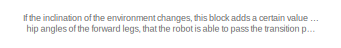
[diagram: root canvas - part 1/6, top right region]
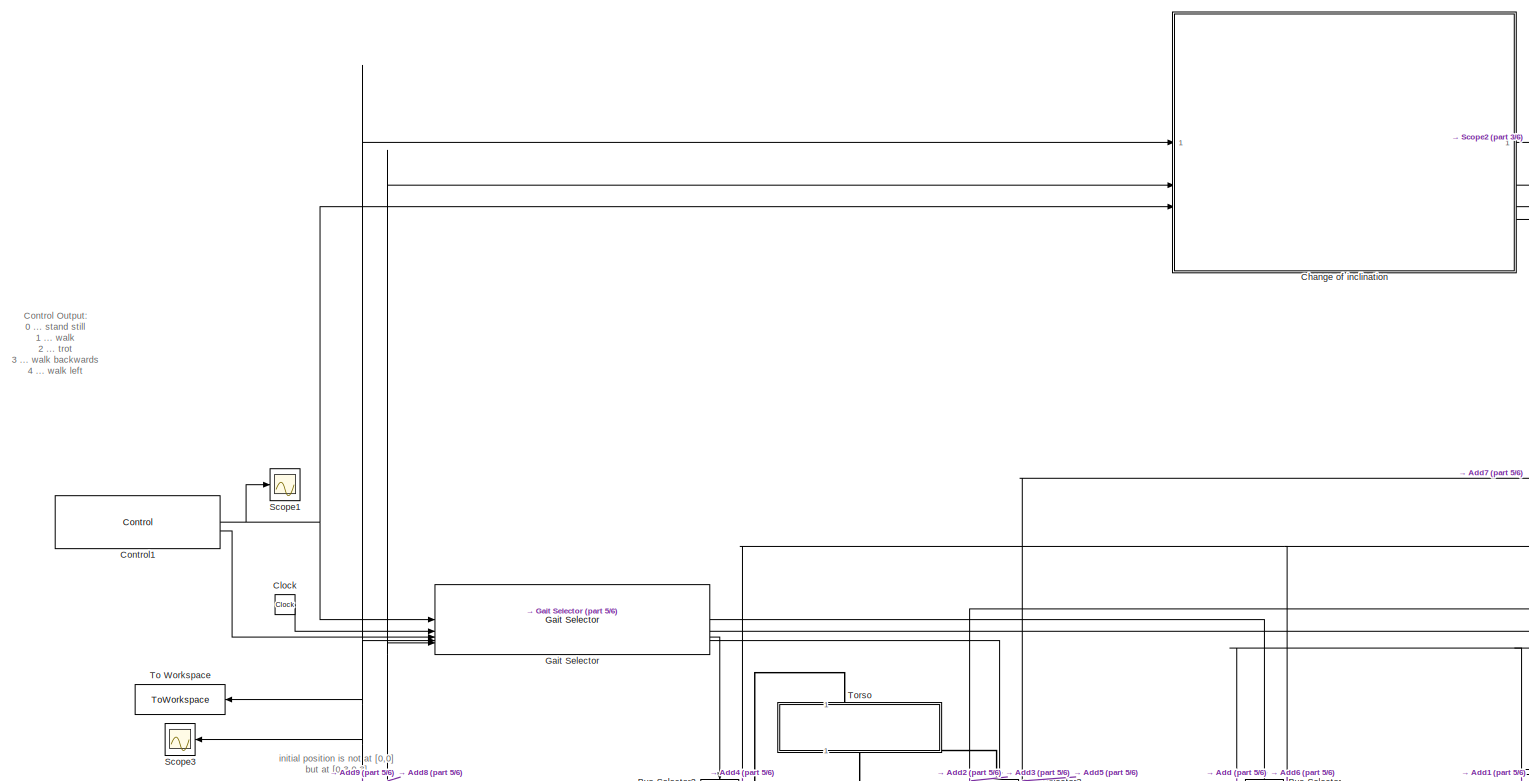
[diagram: root canvas - part 2/6, top center region]
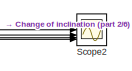
[diagram: root canvas - part 3/6, top right region]
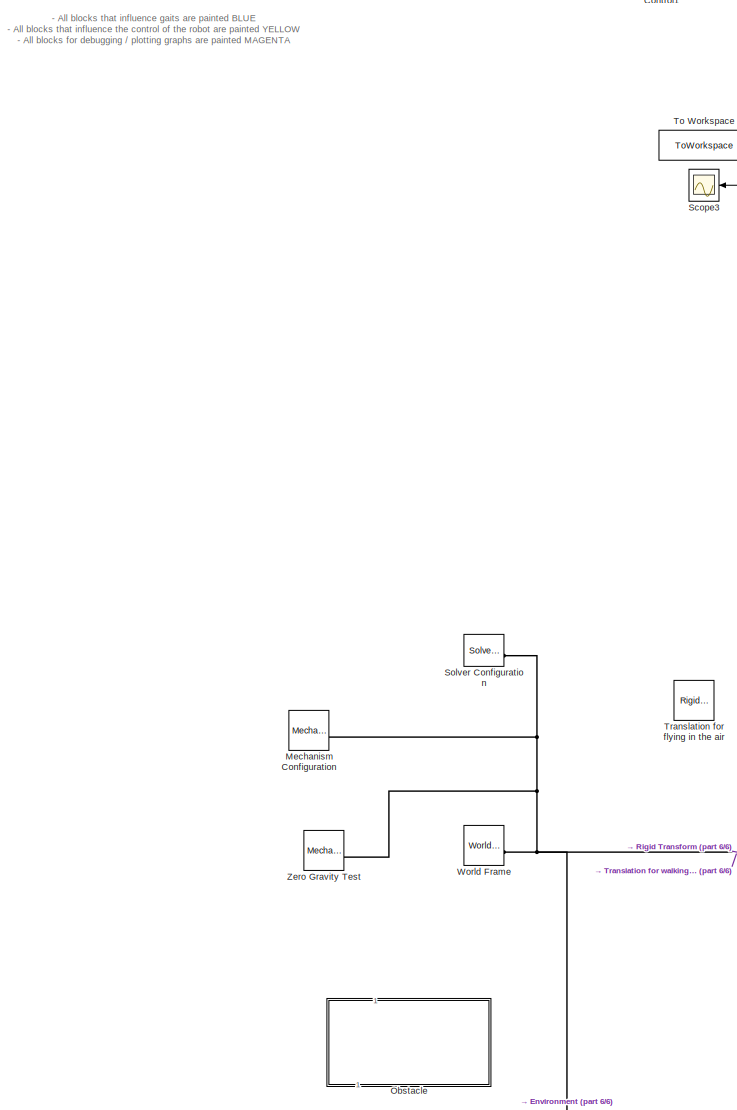
[diagram: root canvas - part 4/6, middle left region]
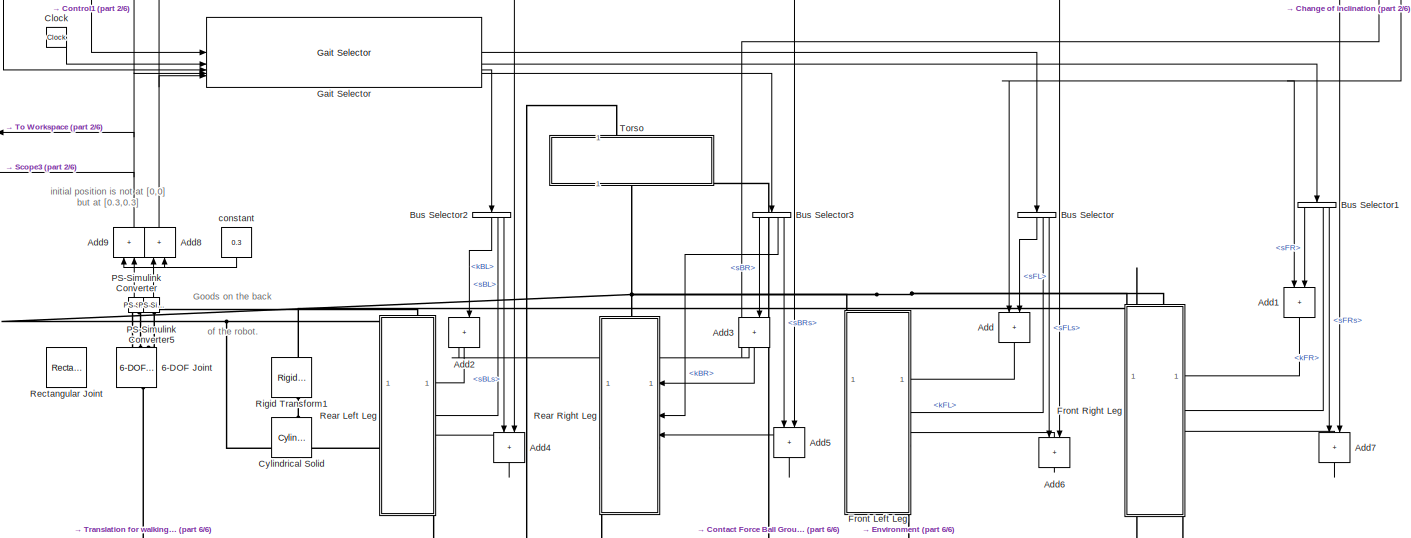
[diagram: root canvas - part 5/6, central region]
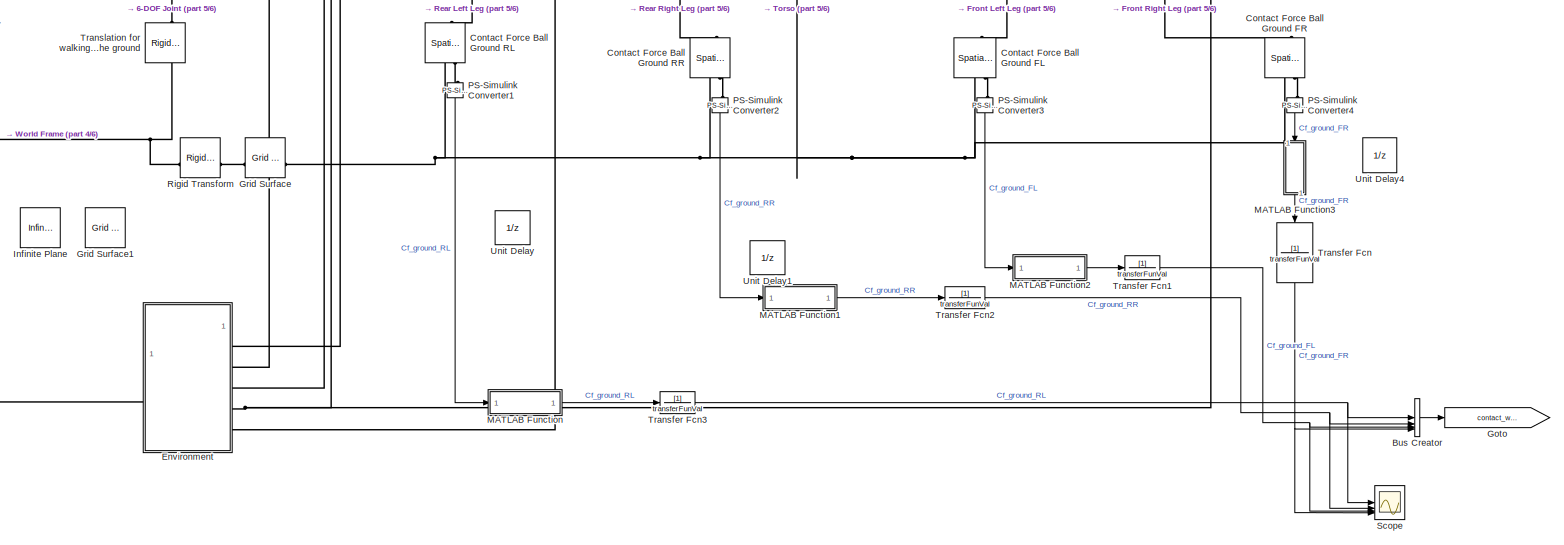
[diagram: root canvas - part 6/6, bottom center region]
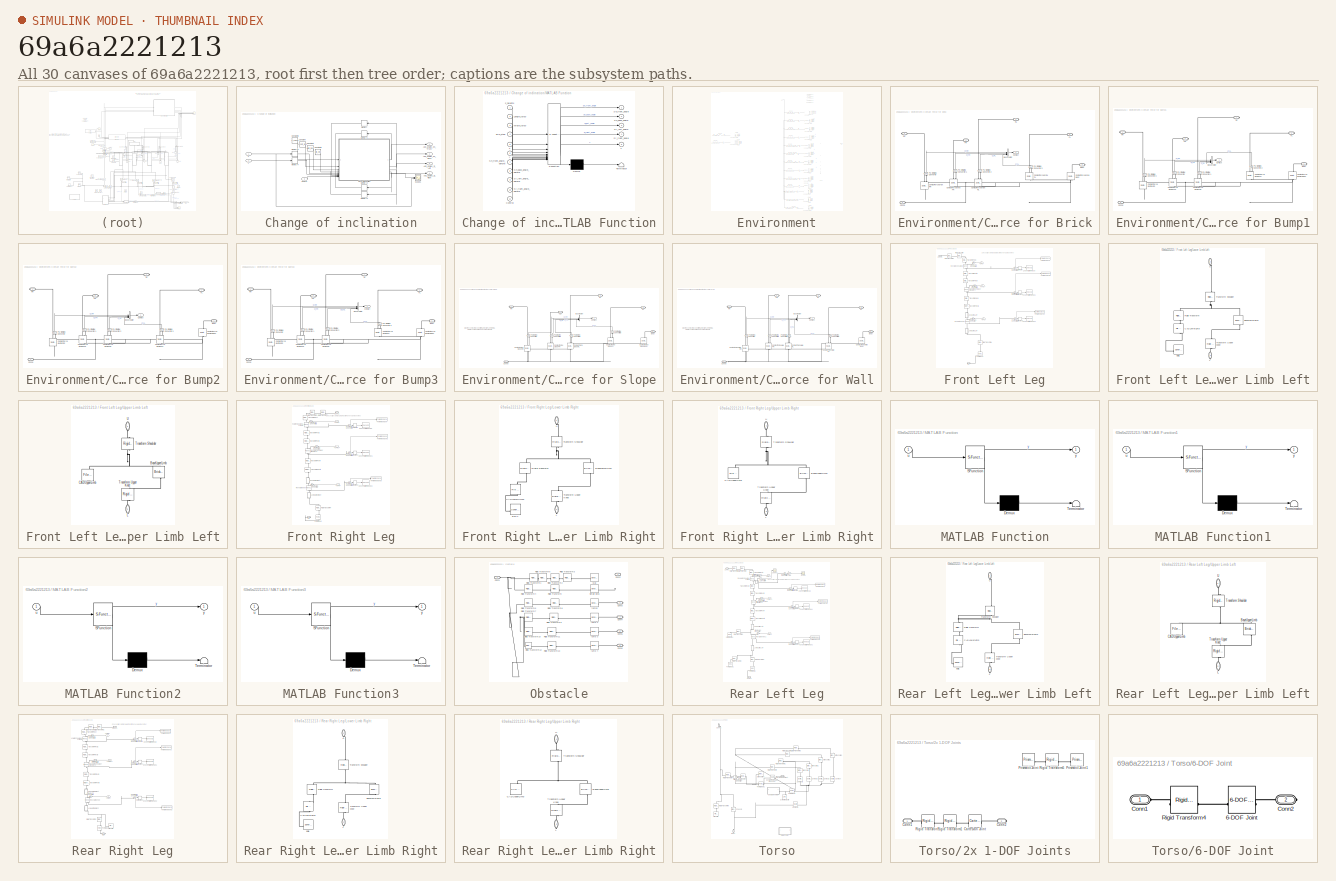
[diagram: thumbnail index - all 30 canvases of the model, root first then tree order]
MODEL slx_69a6a2221213
KIND model
CONFIG AbsTol = 1e-3
CONFIG EnableMultiTasking = on
CONFIG FixedStep = auto
CONFIG InitFcn = run('Parameters_pntcld.m');
CONFIG MaxStep = auto
CONFIG MinStep = auto
CONFIG RelTol = 1e-3
CONFIG SampleTimeConstraint = Unconstrained
CONFIG SolverName = ode23t
CONFIG StartTime = 0.0
CONFIG StopFcn = run('plot_and_save.m');
CONFIG StopTime = inf
WORKSPACE source: mxarray member
WORKSPACE A = 0.4
WORKSPACE Critical_Velocity = 0.01
WORKSPACE Damping_Factor = 1000
WORKSPACE Dynamic_Friction = 0.5
WORKSPACE Heigth_brick: Simulink.Parameter (value not decoded)
WORKSPACE Heigth_ramp: Simulink.Parameter (value not decoded)
WORKSPACE Length_brick: Simulink.Parameter (value not decoded)
WORKSPACE Length_ramp: Simulink.Parameter (value not decoded)
WORKSPACE Length_torso: Simulink.Parameter (value not decoded)
WORKSPACE Lower_limbs: Simulink.Parameter (value not decoded)
WORKSPACE Static_Friction = 0.7
WORKSPACE Stiffnesscoefficient = 10000
WORKSPACE Transition_Region_Width = 0.02
WORKSPACE Upper_limbs: Simulink.Parameter (value not decoded)
WORKSPACE Width_brick: Simulink.Parameter (value not decoded)
WORKSPACE Width_ramp: Simulink.Parameter (value not decoded)
WORKSPACE Width_torso: Simulink.Parameter (value not decoded)
WORKSPACE f = 1.5
WORKSPACE max_Joint_change = 100
WORKSPACE r_foot: Simulink.Parameter (value not decoded)
WORKSPACE sampleTime: Simulink.Parameter (value not decoded)
WORKSPACE t_leg: Simulink.Parameter (value not decoded)
WORKSPACE theta: Simulink.Parameter (value not decoded)
WORKSPACE transferFunVal: Simulink.Parameter (value not decoded)
BLOCK [Reference] 6-DOF Joint  REF=sm_lib/Joints/6-DOF Joint
  NameLocation = right
  SourceBlock = sm_lib/Joints/6-DOF Joint
  SourceType = 6-DOF Joint
BLOCK [Sum] Add
  IconShape = rectangular
  NameLocation = left
BLOCK [Sum] Add1
  IconShape = rectangular
  NameLocation = left
BLOCK [Sum] Add2
  IconShape = rectangular
  NameLocation = left
BLOCK [Sum] Add3
  IconShape = rectangular
  NameLocation = left
BLOCK [Sum] Add4
  IconShape = rectangular
  NameLocation = left
BLOCK [Sum] Add5
  IconShape = rectangular
  NameLocation = left
BLOCK [Sum] Add6
  IconShape = rectangular
  NameLocation = left
BLOCK [Sum] Add7
  IconShape = rectangular
  NameLocation = left
BLOCK [Sum] Add8
  IconShape = rectangular
  NameLocation = right
BLOCK [Sum] Add9
  IconShape = rectangular
  NameLocation = right
BLOCK [BusCreator] Bus Creator
  DisplayOption = bar
  InheritFromInputs = on
  Inputs = 4
BLOCK [BusSelector] Bus Selector
  NameLocation = left
  OutputSignals = sFL,kFL,sFLs
BLOCK [BusSelector] Bus Selector1
  NameLocation = left
  OutputSignals = sFR,kFR,sFRs
BLOCK [BusSelector] Bus Selector2
  NameLocation = left
  OutputSignals = sBL,kBL,sBLs
BLOCK [BusSelector] Bus Selector3
  NameLocation = left
  OutputSignals = sBR,kBR,sBRs
BLOCK [SubSystem] Change of inclination
BLOCK [Outport] Change of inclination/Add_angles_Sh_Back
  NameLocation = right
  Port = 2
BLOCK [Outport] Change of inclination/Add_angles_Sh_Front
  NameLocation = right
BLOCK [Outport] Change of inclination/Add_angles_Si_Left
  NameLocation = right
  Port = 3
BLOCK [Outport] Change of inclination/Add_angles_Si_Right
  NameLocation = right
  Port = 4
BLOCK [Constant] Change of inclination/Constant
  Value = Length_torso
BLOCK [Constant] Change of inclination/Constant1
  Value = Width_torso
BLOCK [Constant] Change of inclination/Constant2
  Value = grid_step
BLOCK [Constant] Change of inclination/Constant3
  Value = z_heights
BLOCK [Inport] Change of inclination/Control
  Port = 3
BLOCK [SubSystem] Change of inclination/MATLAB Function
  ErrorFcn = Stateflow.Translate.translate
  PermitHierarchicalResolution = ExplicitOnly
  SFBlockType = MATLAB Function
  SystemSampleTime = 0.1
  TreatAsAtomicUnit = on
BLOCK [Demux] Change of inclination/MATLAB Function/ Demux 
  Outputs = 1
BLOCK [S-Function] Change of inclination/MATLAB Function/ SFunction 
  EnableBusSupport = on
  FunctionName = sf_sfun
  PortCounts = [11 6]
  SFcnIsStateOwnerBlock = off
  SFunctionDeploymentMode = off
  Tag = Stateflow S-Function 5
BLOCK [Terminator] Change of inclination/MATLAB Function/ Terminator 
BLOCK [Inport] Change of inclination/MATLAB Function/Control
  Port = 11
BLOCK [Inport] Change of inclination/MATLAB Function/Length_torso
  Port = 2
BLOCK [Outport] Change of inclination/MATLAB Function/Sh_back_angle
  Port = 2
BLOCK [Inport] Change of inclination/MATLAB Function/Sh_back_angle_before
  Port = 8
BLOCK [Outport] Change of inclination/MATLAB Function/Sh_front_angle
BLOCK [Inport] Change of inclination/MATLAB Function/Sh_front_angle_before
  Port = 7
BLOCK [Outport] Change of inclination/MATLAB Function/Si_left_angle
  Port = 3
BLOCK [Inport] Change of inclination/MATLAB Function/Si_left_angle_before
  Port = 9
BLOCK [Outport] Change of inclination/MATLAB Function/Si_right_angle
  Port = 4
BLOCK [Inport] Change of inclination/MATLAB Function/Si_right_angle_before
  Port = 10
BLOCK [Inport] Change of inclination/MATLAB Function/Width_torso
  Port = 3
BLOCK [Outport] Change of inclination/MATLAB Function/c
  Port = 5
BLOCK [Inport] Change of inclination/MATLAB Function/grid_step
  Port = 4
BLOCK [Inport] Change of inclination/MATLAB Function/x
  Port = 5
BLOCK [Inport] Change of inclination/MATLAB Function/y
  Port = 6
BLOCK [Inport] Change of inclination/MATLAB Function/z_heights
BLOCK [Memory] Change of inclination/Memory
  NameLocation = top
BLOCK [Memory] Change of inclination/Memory1
  NameLocation = top
BLOCK [Memory] Change of inclination/Memory2
  NameLocation = top
BLOCK [Memory] Change of inclination/Memory3
  NameLocation = top
BLOCK [Memory] Change of inclination/Memory4
BLOCK [Memory] Change of inclination/Memory5
BLOCK [Scope] Change of inclination/Scope1
  Floating = off
  NumInputPorts = 2
  ScopeSpecificationString = Simulink.scopes.TimeScopeBlockCfg('CurrentConfiguration', extmgr.ConfigurationSet(extmgr.Configuration('Core','General UI',true),extmgr.Configuration('Core','Source UI',true),extmgr.Configuration('Sources','WiredSimulink',true,'DataLoggingVariableName','ScopeData3'),extmgr.Configuration('Visuals','Time Domain',true,'SerializedDisplays',{struct('MinYLimReal','-0.57191','MaxYLimReal','2.64717','YLab...<+1504ch>
BLOCK [Inport] Change of inclination/X
  NameLocation = left
BLOCK [Inport] Change of inclination/Y
  NameLocation = left
  Port = 2
BLOCK [Clock] Clock
BLOCK [Reference] Contact Force Ball Ground FL  REF=sm_lib/Forces and
Torques/Spatial
Contact Force
  NameLocation = right
  SourceBlock = sm_lib/Forces and\nTorques/Spatial\nContact Force
  SourceType = Spatial\nContact Force
BLOCK [Reference] Contact Force Ball Ground FR  REF=sm_lib/Forces and
Torques/Spatial
Contact Force
  NameLocation = right
  SourceBlock = sm_lib/Forces and\nTorques/Spatial\nContact Force
  SourceType = Spatial\nContact Force
BLOCK [Reference] Contact Force Ball Ground RL  REF=sm_lib/Forces and
Torques/Spatial
Contact Force
  NameLocation = left
  SourceBlock = sm_lib/Forces and\nTorques/Spatial\nContact Force
  SourceType = Spatial\nContact Force
BLOCK [Reference] Contact Force Ball Ground RR  REF=sm_lib/Forces and
Torques/Spatial
Contact Force
  NameLocation = right
  SourceBlock = sm_lib/Forces and\nTorques/Spatial\nContact Force
  SourceType = Spatial\nContact Force
BLOCK [Reference] Control1  REF=control/Control  (lib defined in mdl_593a49fa2885, mdl_69e7b38ea474, +35 more)
  SourceBlock = control/Control
  SourceType = SubSystem
BLOCK [Reference] Cylindrical Solid  REF=sm_lib/Body Elements/Cylindrical Solid
  Commented = on
  NameLocation = right
  SourceBlock = sm_lib/Body Elements/Cylindrical Solid
  SourceType = Cylindrical Solid
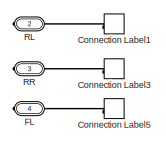
[diagram: Environment - part 1/8, top right region]
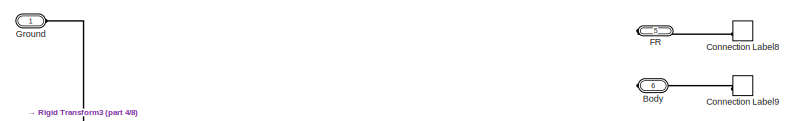
[diagram: Environment - part 2/8, top center region]
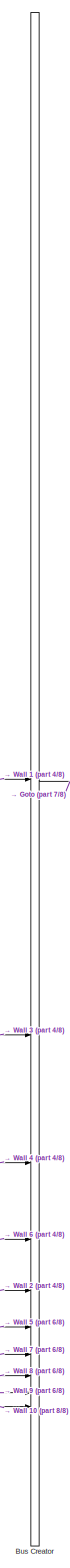
[diagram: Environment - part 3/8, middle right region]
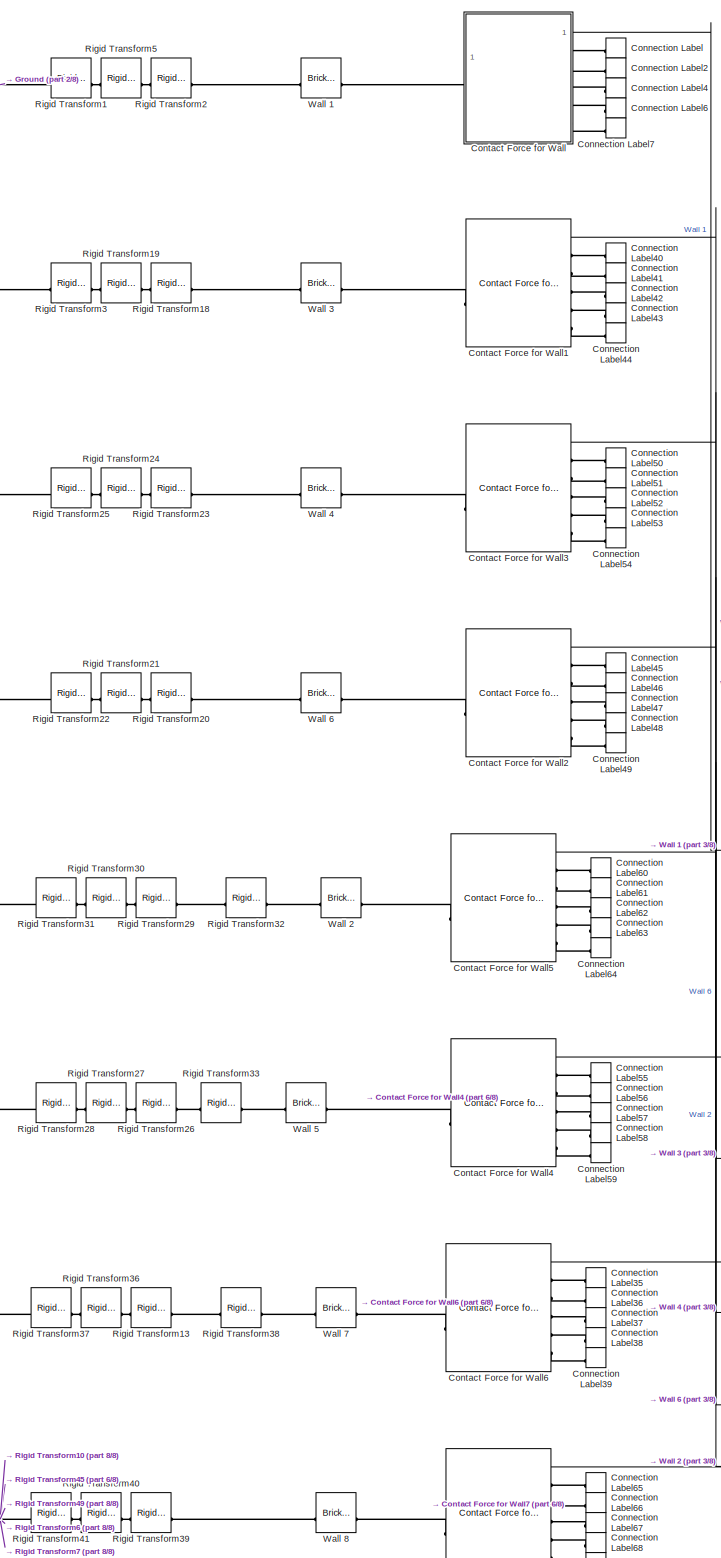
[diagram: Environment - part 4/8, middle right region]
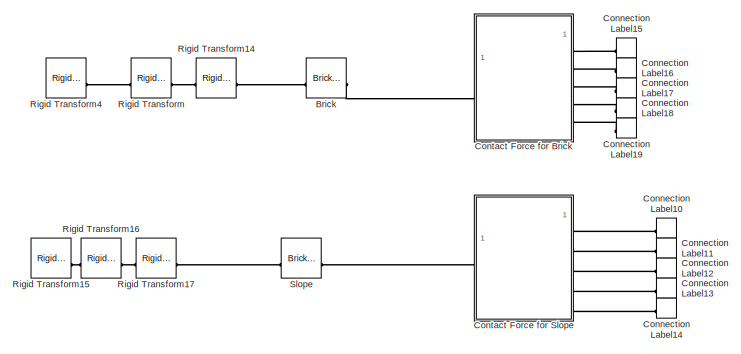
[diagram: Environment - part 5/8, middle left region]
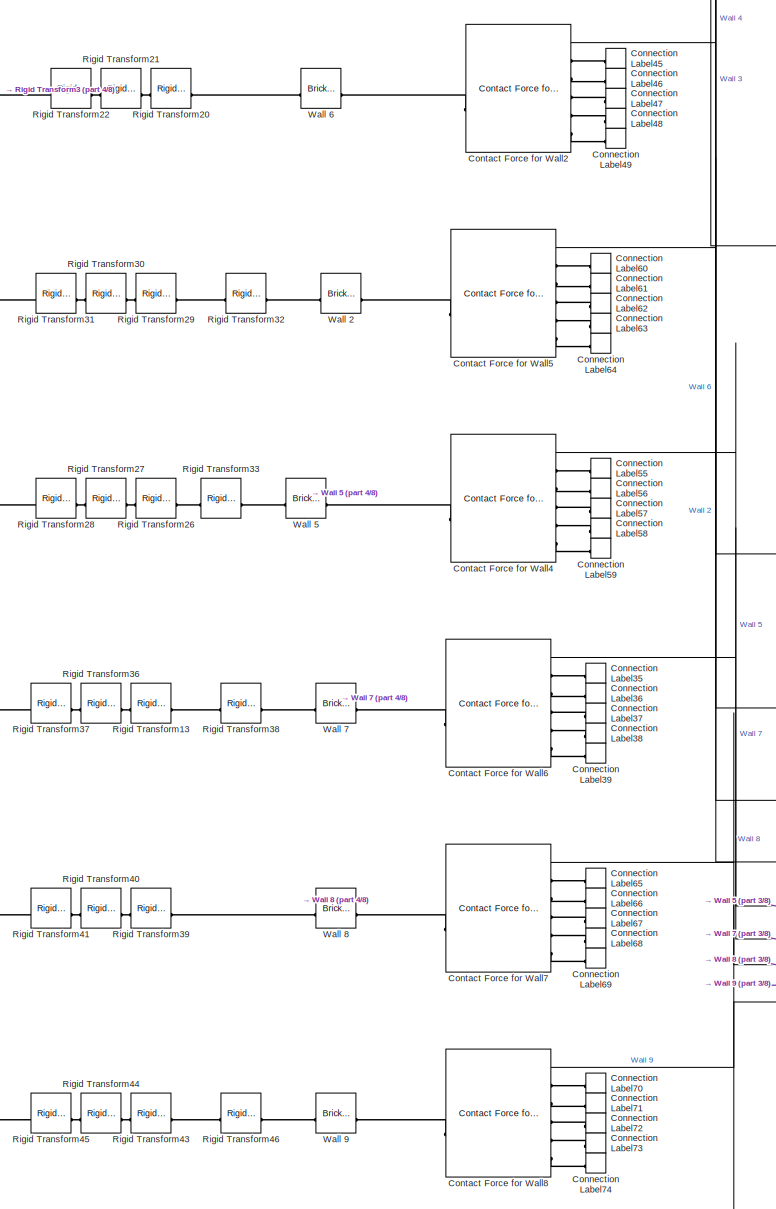
[diagram: Environment - part 6/8, middle right region]
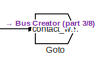
[diagram: Environment - part 7/8, middle right region]
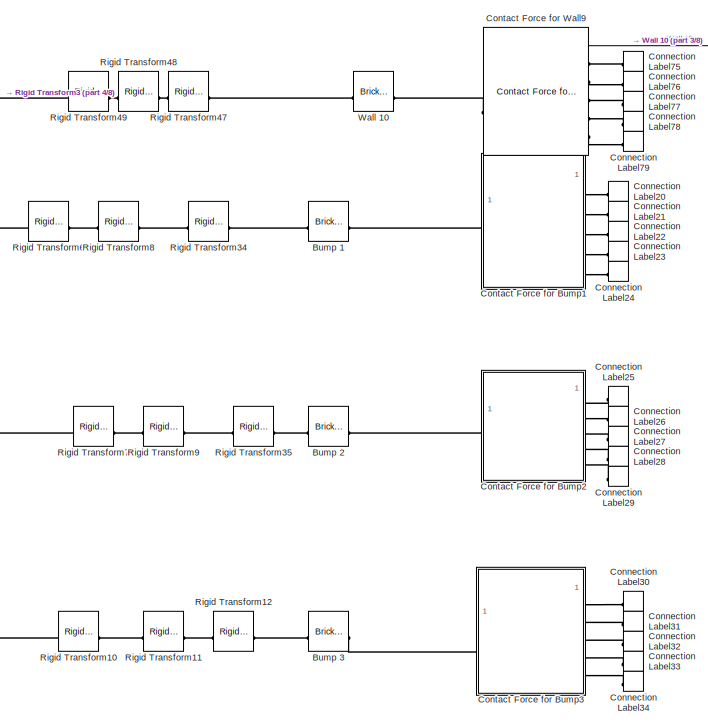
[diagram: Environment - part 8/8, bottom center region]
BLOCK [SubSystem] Environment
  AncestorBlock = environment/Environment
BLOCK [Reference] Environment/ Brick  REF=sm_lib/Body Elements/Brick Solid
  Commented = on
  NameLocation = top
  SourceBlock = sm_lib/Body Elements/Brick Solid
  SourceType = Brick Solid
BLOCK [PMIOPort] Environment/Body
  Port = 6
  Side = Right
BLOCK [Reference] Environment/Bump 1  REF=sm_lib/Body Elements/Brick Solid
  Commented = on
  NameLocation = top
  SourceBlock = sm_lib/Body Elements/Brick Solid
  SourceType = Brick Solid
BLOCK [Reference] Environment/Bump 2  REF=sm_lib/Body Elements/Brick Solid
  Commented = on
  NameLocation = top
  SourceBlock = sm_lib/Body Elements/Brick Solid
  SourceType = Brick Solid
BLOCK [Reference] Environment/Bump 3  REF=sm_lib/Body Elements/Brick Solid
  Commented = on
  NameLocation = top
  SourceBlock = sm_lib/Body Elements/Brick Solid
  SourceType = Brick Solid
BLOCK [BusCreator] Environment/Bus Creator
  DisplayOption = bar
  InheritFromInputs = on
  Inputs = 10
BLOCK [ConnectionLabel] Environment/Connection Label
  Label = Conn1
BLOCK [ConnectionLabel] Environment/Connection Label1
  Label = Conn1
BLOCK [ConnectionLabel] Environment/Connection Label10
  Label = Conn1
BLOCK [ConnectionLabel] Environment/Connection Label11
  Label = Conn2
BLOCK [ConnectionLabel] Environment/Connection Label12
  Label = Conn3
BLOCK [ConnectionLabel] Environment/Connection Label13
  Label = Conn4
BLOCK [ConnectionLabel] Environment/Connection Label14
  Label = Conn6
BLOCK [ConnectionLabel] Environment/Connection Label15
  Label = Conn1
BLOCK [ConnectionLabel] Environment/Connection Label16
  Label = Conn2
BLOCK [ConnectionLabel] Environment/Connection Label17
  Label = Conn3
BLOCK [ConnectionLabel] Environment/Connection Label18
  Label = Conn4
BLOCK [ConnectionLabel] Environment/Connection Label19
  Label = Conn6
BLOCK [ConnectionLabel] Environment/Connection Label2
  Label = Conn2
BLOCK [ConnectionLabel] Environment/Connection Label20
  Label = Conn1
BLOCK [ConnectionLabel] Environment/Connection Label21
  Label = Conn2
BLOCK [ConnectionLabel] Environment/Connection Label22
  Label = Conn3
BLOCK [ConnectionLabel] Environment/Connection Label23
  Label = Conn4
BLOCK [ConnectionLabel] Environment/Connection Label24
  Label = Conn6
BLOCK [ConnectionLabel] Environment/Connection Label25
  Label = Conn1
BLOCK [ConnectionLabel] Environment/Connection Label26
  Label = Conn2
BLOCK [ConnectionLabel] Environment/Connection Label27
  Label = Conn3
BLOCK [ConnectionLabel] Environment/Connection Label28
  Label = Conn4
BLOCK [ConnectionLabel] Environment/Connection Label29
  Label = Conn6
BLOCK [ConnectionLabel] Environment/Connection Label3
  Label = Conn2
BLOCK [ConnectionLabel] Environment/Connection Label30
  Label = Conn1
BLOCK [ConnectionLabel] Environment/Connection Label31
  Label = Conn2
BLOCK [ConnectionLabel] Environment/Connection Label32
  Label = Conn3
BLOCK [ConnectionLabel] Environment/Connection Label33
  Label = Conn4
BLOCK [ConnectionLabel] Environment/Connection Label34
  Label = Conn6
BLOCK [ConnectionLabel] Environment/Connection Label35
  Label = Conn1
BLOCK [ConnectionLabel] Environment/Connection Label36
  Label = Conn2
BLOCK [ConnectionLabel] Environment/Connection Label37
  Label = Conn3
BLOCK [ConnectionLabel] Environment/Connection Label38
  Label = Conn4
BLOCK [ConnectionLabel] Environment/Connection Label39
  Label = Conn6
BLOCK [ConnectionLabel] Environment/Connection Label4
  Label = Conn3
BLOCK [ConnectionLabel] Environment/Connection Label40
  Label = Conn1
BLOCK [ConnectionLabel] Environment/Connection Label41
  Label = Conn2
BLOCK [ConnectionLabel] Environment/Connection Label42
  Label = Conn3
BLOCK [ConnectionLabel] Environment/Connection Label43
  Label = Conn4
BLOCK [ConnectionLabel] Environment/Connection Label44
  Label = Conn6
BLOCK [ConnectionLabel] Environment/Connection Label45
  Label = Conn1
BLOCK [ConnectionLabel] Environment/Connection Label46
  Label = Conn2
BLOCK [ConnectionLabel] Environment/Connection Label47
  Label = Conn3
BLOCK [ConnectionLabel] Environment/Connection Label48
  Label = Conn4
BLOCK [ConnectionLabel] Environment/Connection Label49
  Label = Conn6
BLOCK [ConnectionLabel] Environment/Connection Label5
  Label = Conn3
BLOCK [ConnectionLabel] Environment/Connection Label50
  Label = Conn1
BLOCK [ConnectionLabel] Environment/Connection Label51
  Label = Conn2
BLOCK [ConnectionLabel] Environment/Connection Label52
  Label = Conn3
BLOCK [ConnectionLabel] Environment/Connection Label53
  Label = Conn4
BLOCK [ConnectionLabel] Environment/Connection Label54
  Label = Conn6
BLOCK [ConnectionLabel] Environment/Connection Label55
  Label = Conn1
BLOCK [ConnectionLabel] Environment/Connection Label56
  Label = Conn2
BLOCK [ConnectionLabel] Environment/Connection Label57
  Label = Conn3
BLOCK [ConnectionLabel] Environment/Connection Label58
  Label = Conn4
BLOCK [ConnectionLabel] Environment/Connection Label59
  Label = Conn6
BLOCK [ConnectionLabel] Environment/Connection Label6
  Label = Conn4
BLOCK [ConnectionLabel] Environment/Connection Label60
  Label = Conn1
BLOCK [ConnectionLabel] Environment/Connection Label61
  Label = Conn2
BLOCK [ConnectionLabel] Environment/Connection Label62
  Label = Conn3
BLOCK [ConnectionLabel] Environment/Connection Label63
  Label = Conn4
BLOCK [ConnectionLabel] Environment/Connection Label64
  Label = Conn6
BLOCK [ConnectionLabel] Environment/Connection Label65
  Label = Conn1
BLOCK [ConnectionLabel] Environment/Connection Label66
  Label = Conn2
BLOCK [ConnectionLabel] Environment/Connection Label67
  Label = Conn3
BLOCK [ConnectionLabel] Environment/Connection Label68
  Label = Conn4
BLOCK [ConnectionLabel] Environment/Connection Label69
  Label = Conn6
BLOCK [ConnectionLabel] Environment/Connection Label7
  Label = Conn6
BLOCK [ConnectionLabel] Environment/Connection Label70
  Label = Conn1
BLOCK [ConnectionLabel] Environment/Connection Label71
  Label = Conn2
BLOCK [ConnectionLabel] Environment/Connection Label72
  Label = Conn3
BLOCK [ConnectionLabel] Environment/Connection Label73
  Label = Conn4
BLOCK [ConnectionLabel] Environment/Connection Label74
  Label = Conn6
BLOCK [ConnectionLabel] Environment/Connection Label75
  Label = Conn1
BLOCK [ConnectionLabel] Environment/Connection Label76
  Label = Conn2
BLOCK [ConnectionLabel] Environment/Connection Label77
  Label = Conn3
BLOCK [ConnectionLabel] Environment/Connection Label78
  Label = Conn4
BLOCK [ConnectionLabel] Environment/Connection Label79
  Label = Conn6
BLOCK [ConnectionLabel] Environment/Connection Label8
  Label = Conn4
BLOCK [ConnectionLabel] Environment/Connection Label9
  Label = Conn6
BLOCK [SubSystem] Environment/Contact Force for Brick
  Commented = on
BLOCK [PMIOPort] Environment/Contact Force for Brick/Body
  Port = 6
  Side = Right
BLOCK [BusCreator] Environment/Contact Force for Brick/Bus Creator
  DisplayOption = bar
  InheritFromInputs = on
  Inputs = 4
BLOCK [PMIOPort] Environment/Contact Force for Brick/Conn5
  Port = 5
  Side = Left
BLOCK [Outport] Environment/Contact Force for Brick/Contact
BLOCK [Reference] Environment/Contact Force for Brick/Contact Force brick Body  REF=sm_lib/Forces and
Torques/Spatial
Contact Force
  NameLocation = left
  SourceBlock = sm_lib/Forces and\nTorques/Spatial\nContact Force
  SourceType = Spatial\nContact Force
BLOCK [Reference] Environment/Contact Force for Brick/Contact Force brick FL  REF=sm_lib/Forces and
Torques/Spatial
Contact Force
  NameLocation = left
  SourceBlock = sm_lib/Forces and\nTorques/Spatial\nContact Force
  SourceType = Spatial\nContact Force
BLOCK [Reference] Environment/Contact Force for Brick/Contact Force brick FR  REF=sm_lib/Forces and
Torques/Spatial
Contact Force
  NameLocation = left
  SourceBlock = sm_lib/Forces and\nTorques/Spatial\nContact Force
  SourceType = Spatial\nContact Force
BLOCK [Reference] Environment/Contact Force for Brick/Contact Force brick RL  REF=sm_lib/Forces and
Torques/Spatial
Contact Force
  NameLocation = left
  SourceBlock = sm_lib/Forces and\nTorques/Spatial\nContact Force
  SourceType = Spatial\nContact Force
BLOCK [Reference] Environment/Contact Force for Brick/Contact Force brick RR  REF=sm_lib/Forces and
Torques/Spatial
Contact Force
  NameLocation = left
  SourceBlock = sm_lib/Forces and\nTorques/Spatial\nContact Force
  SourceType = Spatial\nContact Force
BLOCK [PMIOPort] Environment/Contact Force for Brick/FL
  Port = 3
  Side = Right
BLOCK [PMIOPort] Environment/Contact Force for Brick/FR
  Port = 4
  Side = Right
BLOCK [Reference] Environment/Contact Force for Brick/PS-Simulink Converter  REF=nesl_utility/PS-Simulink
Converter
  NameLocation = right
  SourceBlock = nesl_utility/PS-Simulink\nConverter
  SourceType = PS-Simulink\nConverter
BLOCK [Reference] Environment/Contact Force for Brick/PS-Simulink Converter1  REF=nesl_utility/PS-Simulink
Converter
  NameLocation = right
  SourceBlock = nesl_utility/PS-Simulink\nConverter
  SourceType = PS-Simulink\nConverter
BLOCK [Reference] Environment/Contact Force for Brick/PS-Simulink Converter2  REF=nesl_utility/PS-Simulink
Converter
  NameLocation = right
  SourceBlock = nesl_utility/PS-Simulink\nConverter
  SourceType = PS-Simulink\nConverter
BLOCK [Reference] Environment/Contact Force for Brick/PS-Simulink Converter3  REF=nesl_utility/PS-Simulink
Converter
  NameLocation = right
  SourceBlock = nesl_utility/PS-Simulink\nConverter
  SourceType = PS-Simulink\nConverter
BLOCK [PMIOPort] Environment/Contact Force for Brick/RL
  Side = Right
BLOCK [PMIOPort] Environment/Contact Force for Brick/RR
  Port = 2
  Side = Right
BLOCK [SubSystem] Environment/Contact Force for Bump1
  Commented = on
BLOCK [PMIOPort] Environment/Contact Force for Bump1/Body
  Port = 6
  Side = Right
BLOCK [BusCreator] Environment/Contact Force for Bump1/Bus Creator
  DisplayOption = bar
  InheritFromInputs = on
  Inputs = 4
BLOCK [PMIOPort] Environment/Contact Force for Bump1/Conn5
  Port = 5
  Side = Left
BLOCK [Outport] Environment/Contact Force for Bump1/Contact
BLOCK [Reference] Environment/Contact Force for Bump1/Contact Force Bump 1 Body  REF=sm_lib/Forces and
Torques/Spatial
Contact Force
  NameLocation = left
  SourceBlock = sm_lib/Forces and\nTorques/Spatial\nContact Force
  SourceType = Spatial\nContact Force
BLOCK [Reference] Environment/Contact Force for Bump1/Contact Force Bump 1 FL  REF=sm_lib/Forces and
Torques/Spatial
Contact Force
  NameLocation = left
  SourceBlock = sm_lib/Forces and\nTorques/Spatial\nContact Force
  SourceType = Spatial\nContact Force
BLOCK [Reference] Environment/Contact Force for Bump1/Contact Force Bump 1 FR  REF=sm_lib/Forces and
Torques/Spatial
Contact Force
  NameLocation = left
  SourceBlock = sm_lib/Forces and\nTorques/Spatial\nContact Force
  SourceType = Spatial\nContact Force
BLOCK [Reference] Environment/Contact Force for Bump1/Contact Force Bump 1 RL  REF=sm_lib/Forces and
Torques/Spatial
Contact Force
  NameLocation = left
  SourceBlock = sm_lib/Forces and\nTorques/Spatial\nContact Force
  SourceType = Spatial\nContact Force
BLOCK [Reference] Environment/Contact Force for Bump1/Contact Force Bump 1 RR  REF=sm_lib/Forces and
Torques/Spatial
Contact Force
  NameLocation = left
  SourceBlock = sm_lib/Forces and\nTorques/Spatial\nContact Force
  SourceType = Spatial\nContact Force
BLOCK [PMIOPort] Environment/Contact Force for Bump1/FL
  Port = 3
  Side = Right
BLOCK [PMIOPort] Environment/Contact Force for Bump1/FR
  Port = 4
  Side = Right
BLOCK [Reference] Environment/Contact Force for Bump1/PS-Simulink Converter  REF=nesl_utility/PS-Simulink
Converter
  NameLocation = right
  SourceBlock = nesl_utility/PS-Simulink\nConverter
  SourceType = PS-Simulink\nConverter
BLOCK [Reference] Environment/Contact Force for Bump1/PS-Simulink Converter1  REF=nesl_utility/PS-Simulink
Converter
  NameLocation = right
  SourceBlock = nesl_utility/PS-Simulink\nConverter
  SourceType = PS-Simulink\nConverter
BLOCK [Reference] Environment/Contact Force for Bump1/PS-Simulink Converter2  REF=nesl_utility/PS-Simulink
Converter
  NameLocation = right
  SourceBlock = nesl_utility/PS-Simulink\nConverter
  SourceType = PS-Simulink\nConverter
BLOCK [Reference] Environment/Contact Force for Bump1/PS-Simulink Converter3  REF=nesl_utility/PS-Simulink
Converter
  NameLocation = right
  SourceBlock = nesl_utility/PS-Simulink\nConverter
  SourceType = PS-Simulink\nConverter
BLOCK [PMIOPort] Environment/Contact Force for Bump1/RL
  Side = Right
BLOCK [PMIOPort] Environment/Contact Force for Bump1/RR
  Port = 2
  Side = Right
BLOCK [SubSystem] Environment/Contact Force for Bump2
  Commented = on
BLOCK [PMIOPort] Environment/Contact Force for Bump2/Body
  Port = 6
  Side = Right
BLOCK [BusCreator] Environment/Contact Force for Bump2/Bus Creator
  DisplayOption = bar
  InheritFromInputs = on
  Inputs = 4
BLOCK [PMIOPort] Environment/Contact Force for Bump2/Conn5
  Side = Left
BLOCK [Outport] Environment/Contact Force for Bump2/Contact
BLOCK [Reference] Environment/Contact Force for Bump2/Contact Force Bump 2 Body  REF=sm_lib/Forces and
Torques/Spatial
Contact Force
  NameLocation = left
  SourceBlock = sm_lib/Forces and\nTorques/Spatial\nContact Force
  SourceType = Spatial\nContact Force
BLOCK [Reference] Environment/Contact Force for Bump2/Contact Force Bump 2 FL  REF=sm_lib/Forces and
Torques/Spatial
Contact Force
  NameLocation = left
  SourceBlock = sm_lib/Forces and\nTorques/Spatial\nContact Force
  SourceType = Spatial\nContact Force
BLOCK [Reference] Environment/Contact Force for Bump2/Contact Force Bump 2 FR  REF=sm_lib/Forces and
Torques/Spatial
Contact Force
  NameLocation = left
  SourceBlock = sm_lib/Forces and\nTorques/Spatial\nContact Force
  SourceType = Spatial\nContact Force
BLOCK [Reference] Environment/Contact Force for Bump2/Contact Force Bump 2 RL  REF=sm_lib/Forces and
Torques/Spatial
Contact Force
  NameLocation = left
  SourceBlock = sm_lib/Forces and\nTorques/Spatial\nContact Force
  SourceType = Spatial\nContact Force
BLOCK [Reference] Environment/Contact Force for Bump2/Contact Force Bump 2 RR  REF=sm_lib/Forces and
Torques/Spatial
Contact Force
  NameLocation = left
  SourceBlock = sm_lib/Forces and\nTorques/Spatial\nContact Force
  SourceType = Spatial\nContact Force
BLOCK [PMIOPort] Environment/Contact Force for Bump2/FL
  Port = 4
  Side = Right
BLOCK [PMIOPort] Environment/Contact Force for Bump2/FR
  Port = 5
  Side = Right
BLOCK [Reference] Environment/Contact Force for Bump2/PS-Simulink Converter  REF=nesl_utility/PS-Simulink
Converter
  NameLocation = right
  SourceBlock = nesl_utility/PS-Simulink\nConverter
  SourceType = PS-Simulink\nConverter
BLOCK [Reference] Environment/Contact Force for Bump2/PS-Simulink Converter1  REF=nesl_utility/PS-Simulink
Converter
  NameLocation = right
  SourceBlock = nesl_utility/PS-Simulink\nConverter
  SourceType = PS-Simulink\nConverter
BLOCK [Reference] Environment/Contact Force for Bump2/PS-Simulink Converter2  REF=nesl_utility/PS-Simulink
Converter
  NameLocation = right
  SourceBlock = nesl_utility/PS-Simulink\nConverter
  SourceType = PS-Simulink\nConverter
BLOCK [Reference] Environment/Contact Force for Bump2/PS-Simulink Converter3  REF=nesl_utility/PS-Simulink
Converter
  NameLocation = right
  SourceBlock = nesl_utility/PS-Simulink\nConverter
  SourceType = PS-Simulink\nConverter
BLOCK [PMIOPort] Environment/Contact Force for Bump2/RL
  Port = 2
  Side = Right
BLOCK [PMIOPort] Environment/Contact Force for Bump2/RR
  Port = 3
  Side = Right
BLOCK [SubSystem] Environment/Contact Force for Bump3
  Commented = on
BLOCK [PMIOPort] Environment/Contact Force for Bump3/Body
  Port = 6
  Side = Right
BLOCK [BusCreator] Environment/Contact Force for Bump3/Bus Creator
  DisplayOption = bar
  InheritFromInputs = on
  Inputs = 4
BLOCK [PMIOPort] Environment/Contact Force for Bump3/Conn5
  Port = 5
  Side = Left
BLOCK [Outport] Environment/Contact Force for Bump3/Contact
BLOCK [Reference] Environment/Contact Force for Bump3/Contact Force Bump 3 Body  REF=sm_lib/Forces and
Torques/Spatial
Contact Force
  NameLocation = left
  SourceBlock = sm_lib/Forces and\nTorques/Spatial\nContact Force
  SourceType = Spatial\nContact Force
BLOCK [Reference] Environment/Contact Force for Bump3/Contact Force Bump 3 FL  REF=sm_lib/Forces and
Torques/Spatial
Contact Force
  NameLocation = left
  SourceBlock = sm_lib/Forces and\nTorques/Spatial\nContact Force
  SourceType = Spatial\nContact Force
BLOCK [Reference] Environment/Contact Force for Bump3/Contact Force Bump 3 FR  REF=sm_lib/Forces and
Torques/Spatial
Contact Force
  NameLocation = left
  SourceBlock = sm_lib/Forces and\nTorques/Spatial\nContact Force
  SourceType = Spatial\nContact Force
BLOCK [Reference] Environment/Contact Force for Bump3/Contact Force Bump 3 RL  REF=sm_lib/Forces and
Torques/Spatial
Contact Force
  NameLocation = left
  SourceBlock = sm_lib/Forces and\nTorques/Spatial\nContact Force
  SourceType = Spatial\nContact Force
BLOCK [Reference] Environment/Contact Force for Bump3/Contact Force Bump 3 RR  REF=sm_lib/Forces and
Torques/Spatial
Contact Force
  NameLocation = left
  SourceBlock = sm_lib/Forces and\nTorques/Spatial\nContact Force
  SourceType = Spatial\nContact Force
BLOCK [PMIOPort] Environment/Contact Force for Bump3/FL
  Port = 3
  Side = Right
BLOCK [PMIOPort] Environment/Contact Force for Bump3/FR
  Port = 4
  Side = Right
BLOCK [Reference] Environment/Contact Force for Bump3/PS-Simulink Converter  REF=nesl_utility/PS-Simulink
Converter
  NameLocation = right
  SourceBlock = nesl_utility/PS-Simulink\nConverter
  SourceType = PS-Simulink\nConverter
BLOCK [Reference] Environment/Contact Force for Bump3/PS-Simulink Converter1  REF=nesl_utility/PS-Simulink
Converter
  NameLocation = right
  SourceBlock = nesl_utility/PS-Simulink\nConverter
  SourceType = PS-Simulink\nConverter
BLOCK [Reference] Environment/Contact Force for Bump3/PS-Simulink Converter2  REF=nesl_utility/PS-Simulink
Converter
  NameLocation = right
  SourceBlock = nesl_utility/PS-Simulink\nConverter
  SourceType = PS-Simulink\nConverter
BLOCK [Reference] Environment/Contact Force for Bump3/PS-Simulink Converter3  REF=nesl_utility/PS-Simulink
Converter
  NameLocation = right
  SourceBlock = nesl_utility/PS-Simulink\nConverter
  SourceType = PS-Simulink\nConverter
BLOCK [PMIOPort] Environment/Contact Force for Bump3/RL
  Side = Right
BLOCK [PMIOPort] Environment/Contact Force for Bump3/RR
  Port = 2
  Side = Right
BLOCK [SubSystem] Environment/Contact Force for Slope
  Commented = on
BLOCK [PMIOPort] Environment/Contact Force for Slope/Body
  Port = 6
  Side = Right
BLOCK [BusCreator] Environment/Contact Force for Slope/Bus Creator
  DisplayOption = bar
  InheritFromInputs = on
  Inputs = 4
BLOCK [PMIOPort] Environment/Contact Force for Slope/Conn5
  Port = 5
  Side = Left
BLOCK [Outport] Environment/Contact Force for Slope/Contact
BLOCK [Reference] Environment/Contact Force for Slope/Contact Force Slope Body  REF=sm_lib/Forces and
Torques/Spatial
Contact Force
  NameLocation = left
  SourceBlock = sm_lib/Forces and\nTorques/Spatial\nContact Force
  SourceType = Spatial\nContact Force
BLOCK [Reference] Environment/Contact Force for Slope/Contact Force Slope FL  REF=sm_lib/Forces and
Torques/Spatial
Contact Force
  NameLocation = left
  SourceBlock = sm_lib/Forces and\nTorques/Spatial\nContact Force
  SourceType = Spatial\nContact Force
BLOCK [Reference] Environment/Contact Force for Slope/Contact Force Slope FR  REF=sm_lib/Forces and
Torques/Spatial
Contact Force
  NameLocation = left
  SourceBlock = sm_lib/Forces and\nTorques/Spatial\nContact Force
  SourceType = Spatial\nContact Force
BLOCK [Reference] Environment/Contact Force for Slope/Contact Force Slope RL  REF=sm_lib/Forces and
Torques/Spatial
Contact Force
  NameLocation = left
  SourceBlock = sm_lib/Forces and\nTorques/Spatial\nContact Force
  SourceType = Spatial\nContact Force
BLOCK [Reference] Environment/Contact Force for Slope/Contact Force Slope RR  REF=sm_lib/Forces and
Torques/Spatial
Contact Force
  NameLocation = left
  SourceBlock = sm_lib/Forces and\nTorques/Spatial\nContact Force
  SourceType = Spatial\nContact Force
BLOCK [PMIOPort] Environment/Contact Force for Slope/FL
  Port = 3
  Side = Right
BLOCK [PMIOPort] Environment/Contact Force for Slope/FR
  Port = 4
  Side = Right
BLOCK [Reference] Environment/Contact Force for Slope/PS-Simulink Converter  REF=nesl_utility/PS-Simulink
Converter
  NameLocation = right
  SourceBlock = nesl_utility/PS-Simulink\nConverter
  SourceType = PS-Simulink\nConverter
BLOCK [Reference] Environment/Contact Force for Slope/PS-Simulink Converter1  REF=nesl_utility/PS-Simulink
Converter
  NameLocation = right
  SourceBlock = nesl_utility/PS-Simulink\nConverter
  SourceType = PS-Simulink\nConverter
BLOCK [Reference] Environment/Contact Force for Slope/PS-Simulink Converter2  REF=nesl_utility/PS-Simulink
Converter
  NameLocation = right
  SourceBlock = nesl_utility/PS-Simulink\nConverter
  SourceType = PS-Simulink\nConverter
BLOCK [Reference] Environment/Contact Force for Slope/PS-Simulink Converter3  REF=nesl_utility/PS-Simulink
Converter
  NameLocation = right
  SourceBlock = nesl_utility/PS-Simulink\nConverter
  SourceType = PS-Simulink\nConverter
BLOCK [PMIOPort] Environment/Contact Force for Slope/RL
  Side = Right
BLOCK [PMIOPort] Environment/Contact Force for Slope/RR
  Port = 2
  Side = Right
BLOCK [SubSystem] Environment/Contact Force for Wall
BLOCK [PMIOPort] Environment/Contact Force for Wall/Body
  Port = 6
  Side = Right
BLOCK [BusCreator] Environment/Contact Force for Wall/Bus Creator
  DisplayOption = bar
  InheritFromInputs = on
  Inputs = 4
BLOCK [PMIOPort] Environment/Contact Force for Wall/Conn5
  Port = 5
  Side = Left
BLOCK [Outport] Environment/Contact Force for Wall/Contact
BLOCK [Reference] Environment/Contact Force for Wall/Contact Force Wall Body  REF=sm_lib/Forces and
Torques/Spatial
Contact Force
  NameLocation = left
  SourceBlock = sm_lib/Forces and\nTorques/Spatial\nContact Force
  SourceType = Spatial\nContact Force
BLOCK [Reference] Environment/Contact Force for Wall/Contact Force Wall FL  REF=sm_lib/Forces and
Torques/Spatial
Contact Force
  NameLocation = left
  SourceBlock = sm_lib/Forces and\nTorques/Spatial\nContact Force
  SourceType = Spatial\nContact Force
BLOCK [Reference] Environment/Contact Force for Wall/Contact Force Wall FR  REF=sm_lib/Forces and
Torques/Spatial
Contact Force
  NameLocation = left
  SourceBlock = sm_lib/Forces and\nTorques/Spatial\nContact Force
  SourceType = Spatial\nContact Force
BLOCK [Reference] Environment/Contact Force for Wall/Contact Force Wall RL  REF=sm_lib/Forces and
Torques/Spatial
Contact Force
  NameLocation = left
  SourceBlock = sm_lib/Forces and\nTorques/Spatial\nContact Force
  SourceType = Spatial\nContact Force
BLOCK [Reference] Environment/Contact Force for Wall/Contact Force Wall RR  REF=sm_lib/Forces and
Torques/Spatial
Contact Force
  NameLocation = left
  SourceBlock = sm_lib/Forces and\nTorques/Spatial\nContact Force
  SourceType = Spatial\nContact Force
BLOCK [PMIOPort] Environment/Contact Force for Wall/FL
  Port = 3
  Side = Right
BLOCK [PMIOPort] Environment/Contact Force for Wall/FR
  Port = 4
  Side = Right
BLOCK [Reference] Environment/Contact Force for Wall/PS-Simulink Converter  REF=nesl_utility/PS-Simulink
Converter
  NameLocation = right
  SourceBlock = nesl_utility/PS-Simulink\nConverter
  SourceType = PS-Simulink\nConverter
BLOCK [Reference] Environment/Contact Force for Wall/PS-Simulink Converter1  REF=nesl_utility/PS-Simulink
Converter
  NameLocation = right
  SourceBlock = nesl_utility/PS-Simulink\nConverter
  SourceType = PS-Simulink\nConverter
BLOCK [Reference] Environment/Contact Force for Wall/PS-Simulink Converter2  REF=nesl_utility/PS-Simulink
Converter
  NameLocation = right
  SourceBlock = nesl_utility/PS-Simulink\nConverter
  SourceType = PS-Simulink\nConverter
BLOCK [Reference] Environment/Contact Force for Wall/PS-Simulink Converter3  REF=nesl_utility/PS-Simulink
Converter
  NameLocation = right
  SourceBlock = nesl_utility/PS-Simulink\nConverter
  SourceType = PS-Simulink\nConverter
BLOCK [PMIOPort] Environment/Contact Force for Wall/RL
  Side = Right
BLOCK [PMIOPort] Environment/Contact Force for Wall/RR
  Port = 2
  Side = Right
BLOCK [Reference] Environment/Contact Force for Wall1  REF=environment/Environment/Contact Force for Wall  (lib defined in slx_0e64a065ad8c, slx_1a373574b8ee, +3 more)
  SourceBlock = environment/Environment/Contact Force for Wall
  SourceType = SubSystem
BLOCK [Reference] Environment/Contact Force for Wall2  REF=environment/Environment/Contact Force for Wall  (lib defined in slx_0e64a065ad8c, slx_1a373574b8ee, +3 more)
  SourceBlock = environment/Environment/Contact Force for Wall
  SourceType = SubSystem
BLOCK [Reference] Environment/Contact Force for Wall3  REF=environment/Environment/Contact Force for Wall  (lib defined in slx_0e64a065ad8c, slx_1a373574b8ee, +3 more)
  SourceBlock = environment/Environment/Contact Force for Wall
  SourceType = SubSystem
BLOCK [Reference] Environment/Contact Force for Wall4  REF=environment/Environment/Contact Force for Wall  (lib defined in slx_0e64a065ad8c, slx_1a373574b8ee, +3 more)
  SourceBlock = environment/Environment/Contact Force for Wall
  SourceType = SubSystem
BLOCK [Reference] Environment/Contact Force for Wall5  REF=environment/Environment/Contact Force for Wall  (lib defined in slx_0e64a065ad8c, slx_1a373574b8ee, +3 more)
  SourceBlock = environment/Environment/Contact Force for Wall
  SourceType = SubSystem
BLOCK [Reference] Environment/Contact Force for Wall6  REF=environment/Environment/Contact Force for Wall  (lib defined in slx_0e64a065ad8c, slx_1a373574b8ee, +3 more)
  SourceBlock = environment/Environment/Contact Force for Wall
  SourceType = SubSystem
BLOCK [Reference] Environment/Contact Force for Wall7  REF=environment/Environment/Contact Force for Wall  (lib defined in slx_0e64a065ad8c, slx_1a373574b8ee, +3 more)
  SourceBlock = environment/Environment/Contact Force for Wall
  SourceType = SubSystem
BLOCK [Reference] Environment/Contact Force for Wall8  REF=environment/Environment/Contact Force for Wall  (lib defined in slx_0e64a065ad8c, slx_1a373574b8ee, +3 more)
  SourceBlock = environment/Environment/Contact Force for Wall
  SourceType = SubSystem
BLOCK [Reference] Environment/Contact Force for Wall9  REF=environment/Environment/Contact Force for Wall  (lib defined in slx_0e64a065ad8c, slx_1a373574b8ee, +3 more)
  SourceBlock = environment/Environment/Contact Force for Wall
  SourceType = SubSystem
BLOCK [PMIOPort] Environment/FL
  Port = 4
  Side = Right
BLOCK [PMIOPort] Environment/FR
  NameLocation = top
  Port = 5
  Side = Right
BLOCK [Goto] Environment/Goto
  GotoTag = contact_with_x
  TagVisibility = global
BLOCK [PMIOPort] Environment/Ground
  Side = Left
BLOCK [PMIOPort] Environment/RL
  Port = 2
  Side = Right
BLOCK [PMIOPort] Environment/RR
  NameLocation = top
  Port = 3
  Side = Right
BLOCK [Reference] Environment/Rigid Transform  REF=sm_lib/Frames and
Transforms/Rigid
Transform
  Commented = on
  SourceBlock = sm_lib/Frames and\nTransforms/Rigid\nTransform
  SourceType = Rigid\nTransform
BLOCK [Reference] Environment/Rigid Transform1  REF=sm_lib/Frames and
Transforms/Rigid
Transform
  SourceBlock = sm_lib/Frames and\nTransforms/Rigid\nTransform
  SourceType = Rigid\nTransform
BLOCK [Reference] Environment/Rigid Transform10  REF=sm_lib/Frames and
Transforms/Rigid
Transform
  Commented = on
  SourceBlock = sm_lib/Frames and\nTransforms/Rigid\nTransform
  SourceType = Rigid\nTransform
BLOCK [Reference] Environment/Rigid Transform11  REF=sm_lib/Frames and
Transforms/Rigid
Transform
  Commented = on
  SourceBlock = sm_lib/Frames and\nTransforms/Rigid\nTransform
  SourceType = Rigid\nTransform
BLOCK [Reference] Environment/Rigid Transform12  REF=sm_lib/Frames and
Transforms/Rigid
Transform
  Commented = on
  SourceBlock = sm_lib/Frames and\nTransforms/Rigid\nTransform
  SourceType = Rigid\nTransform
BLOCK [Reference] Environment/Rigid Transform13  REF=sm_lib/Frames and
Transforms/Rigid
Transform
  SourceBlock = sm_lib/Frames and\nTransforms/Rigid\nTransform
  SourceType = Rigid\nTransform
BLOCK [Reference] Environment/Rigid Transform14  REF=sm_lib/Frames and
Transforms/Rigid
Transform
  Commented = on
  SourceBlock = sm_lib/Frames and\nTransforms/Rigid\nTransform
  SourceType = Rigid\nTransform
BLOCK [Reference] Environment/Rigid Transform15  REF=sm_lib/Frames and
Transforms/Rigid
Transform
  Commented = on
  SourceBlock = sm_lib/Frames and\nTransforms/Rigid\nTransform
  SourceType = Rigid\nTransform
BLOCK [Reference] Environment/Rigid Transform16  REF=sm_lib/Frames and
Transforms/Rigid
Transform
  Commented = on
  SourceBlock = sm_lib/Frames and\nTransforms/Rigid\nTransform
  SourceType = Rigid\nTransform
BLOCK [Reference] Environment/Rigid Transform17  REF=sm_lib/Frames and
Transforms/Rigid
Transform
  Commented = on
  SourceBlock = sm_lib/Frames and\nTransforms/Rigid\nTransform
  SourceType = Rigid\nTransform
BLOCK [Reference] Environment/Rigid Transform18  REF=sm_lib/Frames and
Transforms/Rigid
Transform
  SourceBlock = sm_lib/Frames and\nTransforms/Rigid\nTransform
  SourceType = Rigid\nTransform
BLOCK [Reference] Environment/Rigid Transform19  REF=sm_lib/Frames and
Transforms/Rigid
Transform
  SourceBlock = sm_lib/Frames and\nTransforms/Rigid\nTransform
  SourceType = Rigid\nTransform
BLOCK [Reference] Environment/Rigid Transform2  REF=sm_lib/Frames and
Transforms/Rigid
Transform
  SourceBlock = sm_lib/Frames and\nTransforms/Rigid\nTransform
  SourceType = Rigid\nTransform
BLOCK [Reference] Environment/Rigid Transform20  REF=sm_lib/Frames and
Transforms/Rigid
Transform
  SourceBlock = sm_lib/Frames and\nTransforms/Rigid\nTransform
  SourceType = Rigid\nTransform
BLOCK [Reference] Environment/Rigid Transform21  REF=sm_lib/Frames and
Transforms/Rigid
Transform
  SourceBlock = sm_lib/Frames and\nTransforms/Rigid\nTransform
  SourceType = Rigid\nTransform
BLOCK [Reference] Environment/Rigid Transform22  REF=sm_lib/Frames and
Transforms/Rigid
Transform
  SourceBlock = sm_lib/Frames and\nTransforms/Rigid\nTransform
  SourceType = Rigid\nTransform
BLOCK [Reference] Environment/Rigid Transform23  REF=sm_lib/Frames and
Transforms/Rigid
Transform
  SourceBlock = sm_lib/Frames and\nTransforms/Rigid\nTransform
  SourceType = Rigid\nTransform
BLOCK [Reference] Environment/Rigid Transform24  REF=sm_lib/Frames and
Transforms/Rigid
Transform
  SourceBlock = sm_lib/Frames and\nTransforms/Rigid\nTransform
  SourceType = Rigid\nTransform
BLOCK [Reference] Environment/Rigid Transform25  REF=sm_lib/Frames and
Transforms/Rigid
Transform
  SourceBlock = sm_lib/Frames and\nTransforms/Rigid\nTransform
  SourceType = Rigid\nTransform
BLOCK [Reference] Environment/Rigid Transform26  REF=sm_lib/Frames and
Transforms/Rigid
Transform
  SourceBlock = sm_lib/Frames and\nTransforms/Rigid\nTransform
  SourceType = Rigid\nTransform
BLOCK [Reference] Environment/Rigid Transform27  REF=sm_lib/Frames and
Transforms/Rigid
Transform
  SourceBlock = sm_lib/Frames and\nTransforms/Rigid\nTransform
  SourceType = Rigid\nTransform
BLOCK [Reference] Environment/Rigid Transform28  REF=sm_lib/Frames and
Transforms/Rigid
Transform
  SourceBlock = sm_lib/Frames and\nTransforms/Rigid\nTransform
  SourceType = Rigid\nTransform
BLOCK [Reference] Environment/Rigid Transform29  REF=sm_lib/Frames and
Transforms/Rigid
Transform
  SourceBlock = sm_lib/Frames and\nTransforms/Rigid\nTransform
  SourceType = Rigid\nTransform
BLOCK [Reference] Environment/Rigid Transform3  REF=sm_lib/Frames and
Transforms/Rigid
Transform
  SourceBlock = sm_lib/Frames and\nTransforms/Rigid\nTransform
  SourceType = Rigid\nTransform
BLOCK [Reference] Environment/Rigid Transform30  REF=sm_lib/Frames and
Transforms/Rigid
Transform
  SourceBlock = sm_lib/Frames and\nTransforms/Rigid\nTransform
  SourceType = Rigid\nTransform
BLOCK [Reference] Environment/Rigid Transform31  REF=sm_lib/Frames and
Transforms/Rigid
Transform
  SourceBlock = sm_lib/Frames and\nTransforms/Rigid\nTransform
  SourceType = Rigid\nTransform
BLOCK [Reference] Environment/Rigid Transform32  REF=sm_lib/Frames and
Transforms/Rigid
Transform
  SourceBlock = sm_lib/Frames and\nTransforms/Rigid\nTransform
  SourceType = Rigid\nTransform
BLOCK [Reference] Environment/Rigid Transform33  REF=sm_lib/Frames and
Transforms/Rigid
Transform
  SourceBlock = sm_lib/Frames and\nTransforms/Rigid\nTransform
  SourceType = Rigid\nTransform
BLOCK [Reference] Environment/Rigid Transform34  REF=sm_lib/Frames and
Transforms/Rigid
Transform
  Commented = on
  SourceBlock = sm_lib/Frames and\nTransforms/Rigid\nTransform
  SourceType = Rigid\nTransform
BLOCK [Reference] Environment/Rigid Transform35  REF=sm_lib/Frames and
Transforms/Rigid
Transform
  Commented = on
  SourceBlock = sm_lib/Frames and\nTransforms/Rigid\nTransform
  SourceType = Rigid\nTransform
BLOCK [Reference] Environment/Rigid Transform36  REF=sm_lib/Frames and
Transforms/Rigid
Transform
  SourceBlock = sm_lib/Frames and\nTransforms/Rigid\nTransform
  SourceType = Rigid\nTransform
BLOCK [Reference] Environment/Rigid Transform37  REF=sm_lib/Frames and
Transforms/Rigid
Transform
  SourceBlock = sm_lib/Frames and\nTransforms/Rigid\nTransform
  SourceType = Rigid\nTransform
BLOCK [Reference] Environment/Rigid Transform38  REF=sm_lib/Frames and
Transforms/Rigid
Transform
  SourceBlock = sm_lib/Frames and\nTransforms/Rigid\nTransform
  SourceType = Rigid\nTransform
BLOCK [Reference] Environment/Rigid Transform39  REF=sm_lib/Frames and
Transforms/Rigid
Transform
  SourceBlock = sm_lib/Frames and\nTransforms/Rigid\nTransform
  SourceType = Rigid\nTransform
BLOCK [Reference] Environment/Rigid Transform4  REF=sm_lib/Frames and
Transforms/Rigid
Transform
  Commented = on
  SourceBlock = sm_lib/Frames and\nTransforms/Rigid\nTransform
  SourceType = Rigid\nTransform
BLOCK [Reference] Environment/Rigid Transform40  REF=sm_lib/Frames and
Transforms/Rigid
Transform
  SourceBlock = sm_lib/Frames and\nTransforms/Rigid\nTransform
  SourceType = Rigid\nTransform
BLOCK [Reference] Environment/Rigid Transform41  REF=sm_lib/Frames and
Transforms/Rigid
Transform
  SourceBlock = sm_lib/Frames and\nTransforms/Rigid\nTransform
  SourceType = Rigid\nTransform
BLOCK [Reference] Environment/Rigid Transform43  REF=sm_lib/Frames and
Transforms/Rigid
Transform
  SourceBlock = sm_lib/Frames and\nTransforms/Rigid\nTransform
  SourceType = Rigid\nTransform
BLOCK [Reference] Environment/Rigid Transform44  REF=sm_lib/Frames and
Transforms/Rigid
Transform
  SourceBlock = sm_lib/Frames and\nTransforms/Rigid\nTransform
  SourceType = Rigid\nTransform
BLOCK [Reference] Environment/Rigid Transform45  REF=sm_lib/Frames and
Transforms/Rigid
Transform
  SourceBlock = sm_lib/Frames and\nTransforms/Rigid\nTransform
  SourceType = Rigid\nTransform
BLOCK [Reference] Environment/Rigid Transform46  REF=sm_lib/Frames and
Transforms/Rigid
Transform
  SourceBlock = sm_lib/Frames and\nTransforms/Rigid\nTransform
  SourceType = Rigid\nTransform
BLOCK [Reference] Environment/Rigid Transform47  REF=sm_lib/Frames and
Transforms/Rigid
Transform
  SourceBlock = sm_lib/Frames and\nTransforms/Rigid\nTransform
  SourceType = Rigid\nTransform
BLOCK [Reference] Environment/Rigid Transform48  REF=sm_lib/Frames and
Transforms/Rigid
Transform
  SourceBlock = sm_lib/Frames and\nTransforms/Rigid\nTransform
  SourceType = Rigid\nTransform
BLOCK [Reference] Environment/Rigid Transform49  REF=sm_lib/Frames and
Transforms/Rigid
Transform
  SourceBlock = sm_lib/Frames and\nTransforms/Rigid\nTransform
  SourceType = Rigid\nTransform
BLOCK [Reference] Environment/Rigid Transform5  REF=sm_lib/Frames and
Transforms/Rigid
Transform
  SourceBlock = sm_lib/Frames and\nTransforms/Rigid\nTransform
  SourceType = Rigid\nTransform
BLOCK [Reference] Environment/Rigid Transform6  REF=sm_lib/Frames and
Transforms/Rigid
Transform
  Commented = on
  SourceBlock = sm_lib/Frames and\nTransforms/Rigid\nTransform
  SourceType = Rigid\nTransform
BLOCK [Reference] Environment/Rigid Transform7  REF=sm_lib/Frames and
Transforms/Rigid
Transform
  Commented = on
  SourceBlock = sm_lib/Frames and\nTransforms/Rigid\nTransform
  SourceType = Rigid\nTransform
BLOCK [Reference] Environment/Rigid Transform8  REF=sm_lib/Frames and
Transforms/Rigid
Transform
  Commented = on
  SourceBlock = sm_lib/Frames and\nTransforms/Rigid\nTransform
  SourceType = Rigid\nTransform
BLOCK [Reference] Environment/Rigid Transform9  REF=sm_lib/Frames and
Transforms/Rigid
Transform
  Commented = on
  SourceBlock = sm_lib/Frames and\nTransforms/Rigid\nTransform
  SourceType = Rigid\nTransform
BLOCK [Reference] Environment/Slope  REF=sm_lib/Body Elements/Brick Solid
  Commented = on
  NameLocation = top
  SourceBlock = sm_lib/Body Elements/Brick Solid
  SourceType = Brick Solid
BLOCK [Reference] Environment/Wall 1  REF=sm_lib/Body Elements/Brick Solid
  NameLocation = top
  SourceBlock = sm_lib/Body Elements/Brick Solid
  SourceType = Brick Solid
BLOCK [Reference] Environment/Wall 10  REF=sm_lib/Body Elements/Brick Solid
  NameLocation = top
  SourceBlock = sm_lib/Body Elements/Brick Solid
  SourceType = Brick Solid
BLOCK [Reference] Environment/Wall 2  REF=sm_lib/Body Elements/Brick Solid
  NameLocation = top
  SourceBlock = sm_lib/Body Elements/Brick Solid
  SourceType = Brick Solid
BLOCK [Reference] Environment/Wall 3  REF=sm_lib/Body Elements/Brick Solid
  NameLocation = top
  SourceBlock = sm_lib/Body Elements/Brick Solid
  SourceType = Brick Solid
BLOCK [Reference] Environment/Wall 4  REF=sm_lib/Body Elements/Brick Solid
  NameLocation = top
  SourceBlock = sm_lib/Body Elements/Brick Solid
  SourceType = Brick Solid
BLOCK [Reference] Environment/Wall 5  REF=sm_lib/Body Elements/Brick Solid
  NameLocation = top
  SourceBlock = sm_lib/Body Elements/Brick Solid
  SourceType = Brick Solid
BLOCK [Reference] Environment/Wall 6  REF=sm_lib/Body Elements/Brick Solid
  NameLocation = top
  SourceBlock = sm_lib/Body Elements/Brick Solid
  SourceType = Brick Solid
BLOCK [Reference] Environment/Wall 7  REF=sm_lib/Body Elements/Brick Solid
  NameLocation = top
  SourceBlock = sm_lib/Body Elements/Brick Solid
  SourceType = Brick Solid
BLOCK [Reference] Environment/Wall 8  REF=sm_lib/Body Elements/Brick Solid
  NameLocation = top
  SourceBlock = sm_lib/Body Elements/Brick Solid
  SourceType = Brick Solid
BLOCK [Reference] Environment/Wall 9  REF=sm_lib/Body Elements/Brick Solid
  NameLocation = top
  SourceBlock = sm_lib/Body Elements/Brick Solid
  SourceType = Brick Solid
BLOCK [SubSystem] Front Left Leg
  PortSchema = {"entries":[{"content":{"sides":[{"content":{},"type":"ConnectorPlacement.EquallySpacedRectSide","uuid":"4058ee2b-9772-4aa9-ad2c-dc188ae6aecd"},{"content":{"connectorIds":["In1","In2","In3"],"side":"RIGHT"},"type":"ConnectorPlacement.EquallySpacedRectSide","uuid":"c8f5ac60-63ea-4dfe-ad35-3ef8c1bdb1d6"},{"content":{"connectorIds":["LConn1"],"side":"TOP"},"type":"ConnectorPlacement.EquallySpacedRect...<+389ch>
BLOCK [Inport] Front Left Leg/<kFL>
  NameLocation = top
  Port = 2
BLOCK [Inport] Front Left Leg/<sFL>
  NameLocation = top
BLOCK [Inport] Front Left Leg/<sFLs>
  NameLocation = top
  Port = 3
BLOCK [Reference] Front Left Leg/Check Static Range  REF=simulink/Model
Verification/Check 
Static Range
  Description = -max_Joint_change <= u <= max_Joint_change
  SourceBlock = simulink/Model\nVerification/Check \nStatic Range
  SourceType = Checks_SRange
BLOCK [Reference] Front Left Leg/Check Static Range1  REF=simulink/Model
Verification/Check 
Static Range
  Description = -max_Joint_change <= u <= max_Joint_change
  SourceBlock = simulink/Model\nVerification/Check \nStatic Range
  SourceType = Checks_SRange
BLOCK [Reference] Front Left Leg/Check Static Range2  REF=simulink/Model
Verification/Check 
Static Range
  Description = -max_Joint_change <= u <= max_Joint_change
  SourceBlock = simulink/Model\nVerification/Check \nStatic Range
  SourceType = Checks_SRange
BLOCK [PMIOPort] Front Left Leg/Conn1
  Side = Left
BLOCK [Derivative] Front Left Leg/Derivative
BLOCK [Derivative] Front Left Leg/Derivative1
BLOCK [Derivative] Front Left Leg/Derivative2
BLOCK [PMIOPort] Front Left Leg/FL
  Port = 2
  Side = Right
BLOCK [SubSystem] Front Left Leg/Lower Limb Left
  NameLocation = left
BLOCK [Reference] Front Left Leg/Lower Limb Left/Ball1  REF=sm_lib/Body Elements/Spherical Solid
  SourceBlock = sm_lib/Body Elements/Spherical Solid
  SourceType = Spherical Solid
BLOCK [Reference] Front Left Leg/Lower Limb Left/BaseLowerLimb  REF=sm_lib/Body Elements/Brick Solid
  NameLocation = left
  SourceBlock = sm_lib/Body Elements/Brick Solid
  SourceType = Brick Solid
BLOCK [Reference] Front Left Leg/Lower Limb Left/CADLowerLimb  REF=sm_lib/Body Elements/File Solid
  NameLocation = right
  SourceBlock = sm_lib/Body Elements/File Solid
  SourceType = File Solid
BLOCK [PMIOPort] Front Left Leg/Lower Limb Left/L
  NameLocation = left
  Port = 2
  Side = Right
BLOCK [Reference] Front Left Leg/Lower Limb Left/Rigid Transform  REF=sm_lib/Frames and
Transforms/Rigid
Transform
  NameLocation = left
  SourceBlock = sm_lib/Frames and\nTransforms/Rigid\nTransform
  SourceType = Rigid\nTransform
BLOCK [Reference] Front Left Leg/Lower Limb Left/Transform Shoulder  REF=sm_lib/Frames and
Transforms/Rigid
Transform
  NameLocation = left
  SourceBlock = sm_lib/Frames and\nTransforms/Rigid\nTransform
  SourceType = Rigid\nTransform
BLOCK [Reference] Front Left Leg/Lower Limb Left/Transform Upper Knee  REF=sm_lib/Frames and
Transforms/Rigid
Transform
  NameLocation = left
  SourceBlock = sm_lib/Frames and\nTransforms/Rigid\nTransform
  SourceType = Rigid\nTransform
BLOCK [PMIOPort] Front Left Leg/Lower Limb Left/U
  NameLocation = left
  Side = Left
BLOCK [Reference] Front Left Leg/PS-Simulink Converter1  REF=nesl_utility/PS-Simulink
Converter
  SourceBlock = nesl_utility/PS-Simulink\nConverter
  SourceType = PS-Simulink\nConverter
BLOCK [Reference] Front Left Leg/PS-Simulink Converter2  REF=nesl_utility/PS-Simulink
Converter
  SourceBlock = nesl_utility/PS-Simulink\nConverter
  SourceType = PS-Simulink\nConverter
BLOCK [Reference] Front Left Leg/PS-Simulink Converter3  REF=nesl_utility/PS-Simulink
Converter
  SourceBlock = nesl_utility/PS-Simulink\nConverter
  SourceType = PS-Simulink\nConverter
BLOCK [Reference] Front Left Leg/Point Cloud  REF=sm_lib/Curves and Surfaces/Point Cloud
  NameLocation = left
  SourceBlock = sm_lib/Curves and Surfaces/Point Cloud
  SourceType = Point Cloud
BLOCK [Reference] Front Left Leg/Revolute Knee1  REF=sm_lib/Joints/Revolute Joint
  NameLocation = left
  SourceBlock = sm_lib/Joints/Revolute Joint
  SourceType = Revolute Joint
BLOCK [Reference] Front Left Leg/Revolute Shoulder Sideways  REF=sm_lib/Joints/Revolute Joint
  NameLocation = left
  SourceBlock = sm_lib/Joints/Revolute Joint
  SourceType = Revolute Joint
BLOCK [Reference] Front Left Leg/Revolute Shoulder1  REF=sm_lib/Joints/Revolute Joint
  NameLocation = left
  SourceBlock = sm_lib/Joints/Revolute Joint
  SourceType = Revolute Joint
BLOCK [Reference] Front Left Leg/Rigid Transform  REF=sm_lib/Frames and
Transforms/Rigid
Transform
  SourceBlock = sm_lib/Frames and\nTransforms/Rigid\nTransform
  SourceType = Rigid\nTransform
BLOCK [Reference] Front Left Leg/Rigid Transform1  REF=sm_lib/Frames and
Transforms/Rigid
Transform
  SourceBlock = sm_lib/Frames and\nTransforms/Rigid\nTransform
  SourceType = Rigid\nTransform
BLOCK [Reference] Front Left Leg/Rigid Transform4  REF=sm_lib/Frames and
Transforms/Rigid
Transform
  NameLocation = left
  SourceBlock = sm_lib/Frames and\nTransforms/Rigid\nTransform
  SourceType = Rigid\nTransform
BLOCK [Reference] Front Left Leg/Simulink-PS Converter  REF=nesl_utility/Simulink-PS
Converter
  NameLocation = top
  SourceBlock = nesl_utility/Simulink-PS\nConverter
  SourceType = Simulink-PS\nConverter
BLOCK [Reference] Front Left Leg/Simulink-PS Converter1  REF=nesl_utility/Simulink-PS
Converter
  NameLocation = top
  SourceBlock = nesl_utility/Simulink-PS\nConverter
  SourceType = Simulink-PS\nConverter
BLOCK [Reference] Front Left Leg/Simulink-PS Converter2  REF=nesl_utility/Simulink-PS
Converter
  NameLocation = top
  SourceBlock = nesl_utility/Simulink-PS\nConverter
  SourceType = Simulink-PS\nConverter
BLOCK [ToWorkspace] Front Left Leg/To Workspace
  FixptAsFi = on
  MaxDataPoints = inf
  SampleTime = -1
  SaveFormat = Structure
  VariableName = FL_Sh
BLOCK [ToWorkspace] Front Left Leg/To Workspace1
  FixptAsFi = on
  MaxDataPoints = inf
  SampleTime = -1
  SaveFormat = Structure
  VariableName = FL_Si
BLOCK [ToWorkspace] Front Left Leg/To Workspace2
  FixptAsFi = on
  MaxDataPoints = inf
  SampleTime = -1
  SaveFormat = Structure
  VariableName = FL_Kn
BLOCK [Reference] Front Left Leg/Transform Pivot1  REF=sm_lib/Frames and
Transforms/Rigid
Transform
  NameLocation = left
  SourceBlock = sm_lib/Frames and\nTransforms/Rigid\nTransform
  SourceType = Rigid\nTransform
BLOCK [Reference] Front Left Leg/Transform Pivot2  REF=sm_lib/Frames and
Transforms/Rigid
Transform
  NameLocation = left
  SourceBlock = sm_lib/Frames and\nTransforms/Rigid\nTransform
  SourceType = Rigid\nTransform
BLOCK [Reference] Front Left Leg/Transform Pivot3  REF=sm_lib/Frames and
Transforms/Rigid
Transform
  NameLocation = left
  SourceBlock = sm_lib/Frames and\nTransforms/Rigid\nTransform
  SourceType = Rigid\nTransform
BLOCK [Reference] Front Left Leg/Transform Pivot4  REF=sm_lib/Frames and
Transforms/Rigid
Transform
  NameLocation = left
  SourceBlock = sm_lib/Frames and\nTransforms/Rigid\nTransform
  SourceType = Rigid\nTransform
BLOCK [Reference] Front Left Leg/Transform Pivot5  REF=sm_lib/Frames and
Transforms/Rigid
Transform
  NameLocation = left
  SourceBlock = sm_lib/Frames and\nTransforms/Rigid\nTransform
  SourceType = Rigid\nTransform
BLOCK [SubSystem] Front Left Leg/Upper Limb Left
  NameLocation = left
BLOCK [Reference] Front Left Leg/Upper Limb Left/BaseUpperLimb  REF=sm_lib/Body Elements/Brick Solid
  NameLocation = left
  SourceBlock = sm_lib/Body Elements/Brick Solid
  SourceType = Brick Solid
BLOCK [Reference] Front Left Leg/Upper Limb Left/CADUpperLimb  REF=sm_lib/Body Elements/File Solid
  NameLocation = right
  SourceBlock = sm_lib/Body Elements/File Solid
  SourceType = File Solid
BLOCK [PMIOPort] Front Left Leg/Upper Limb Left/L
  NameLocation = left
  Port = 2
  Side = Right
BLOCK [Reference] Front Left Leg/Upper Limb Left/Transform Shoulder  REF=sm_lib/Frames and
Transforms/Rigid
Transform
  NameLocation = left
  SourceBlock = sm_lib/Frames and\nTransforms/Rigid\nTransform
  SourceType = Rigid\nTransform
BLOCK [Reference] Front Left Leg/Upper Limb Left/Transform Upper Knee  REF=sm_lib/Frames and
Transforms/Rigid
Transform
  NameLocation = left
  SourceBlock = sm_lib/Frames and\nTransforms/Rigid\nTransform
  SourceType = Rigid\nTransform
BLOCK [PMIOPort] Front Left Leg/Upper Limb Left/U
  NameLocation = left
  Side = Left
BLOCK [SubSystem] Front Right Leg
  PortSchema = {"entries":[{"content":{"sides":[{"content":{},"type":"ConnectorPlacement.EquallySpacedRectSide","uuid":"fca64d86-67f1-4a47-b694-02d00a22e122"},{"content":{"connectorIds":["In1","In2","In3"],"side":"RIGHT"},"type":"ConnectorPlacement.EquallySpacedRectSide","uuid":"d4cf8dbd-fa25-4269-9c1c-acf7c5454620"},{"content":{"connectorIds":["LConn1"],"side":"TOP"},"type":"ConnectorPlacement.EquallySpacedRect...<+389ch>
BLOCK [Inport] Front Right Leg/<kFR>
  NameLocation = top
  Port = 2
BLOCK [Inport] Front Right Leg/<sFR>
  NameLocation = top
BLOCK [Inport] Front Right Leg/<sFRs>
  NameLocation = top
  Port = 3
BLOCK [Reference] Front Right Leg/Check Static Range  REF=simulink/Model
Verification/Check 
Static Range
  Description = -max_Joint_change <= u <= max_Joint_change
  SourceBlock = simulink/Model\nVerification/Check \nStatic Range
  SourceType = Checks_SRange
BLOCK [Reference] Front Right Leg/Check Static Range1  REF=simulink/Model
Verification/Check 
Static Range
  Description = -max_Joint_change <= u <= max_Joint_change
  SourceBlock = simulink/Model\nVerification/Check \nStatic Range
  SourceType = Checks_SRange
BLOCK [Reference] Front Right Leg/Check Static Range2  REF=simulink/Model
Verification/Check 
Static Range
  Description = -max_Joint_change <= u <= max_Joint_change
  SourceBlock = simulink/Model\nVerification/Check \nStatic Range
  SourceType = Checks_SRange
BLOCK [PMIOPort] Front Right Leg/Conn1
  Side = Left
BLOCK [Derivative] Front Right Leg/Derivative
BLOCK [Derivative] Front Right Leg/Derivative1
BLOCK [Derivative] Front Right Leg/Derivative2
BLOCK [PMIOPort] Front Right Leg/FR
  Port = 2
  Side = Right
BLOCK [SubSystem] Front Right Leg/Lower Limb Right
  NameLocation = left
BLOCK [Reference] Front Right Leg/Lower Limb Right/Ball1  REF=sm_lib/Body Elements/Spherical Solid
  SourceBlock = sm_lib/Body Elements/Spherical Solid
  SourceType = Spherical Solid
BLOCK [Reference] Front Right Leg/Lower Limb Right/BaseLowerLimb  REF=sm_lib/Body Elements/Brick Solid
  NameLocation = left
  SourceBlock = sm_lib/Body Elements/Brick Solid
  SourceType = Brick Solid
BLOCK [Reference] Front Right Leg/Lower Limb Right/CADLowerLimb1  REF=sm_lib/Body Elements/File Solid
  NameLocation = right
  SourceBlock = sm_lib/Body Elements/File Solid
  SourceType = File Solid
BLOCK [PMIOPort] Front Right Leg/Lower Limb Right/L
  NameLocation = left
  Port = 2
  Side = Right
BLOCK [Reference] Front Right Leg/Lower Limb Right/Rigid Transform  REF=sm_lib/Frames and
Transforms/Rigid
Transform
  NameLocation = left
  SourceBlock = sm_lib/Frames and\nTransforms/Rigid\nTransform
  SourceType = Rigid\nTransform
BLOCK [Reference] Front Right Leg/Lower Limb Right/Transform Shoulder  REF=sm_lib/Frames and
Transforms/Rigid
Transform
  NameLocation = left
  SourceBlock = sm_lib/Frames and\nTransforms/Rigid\nTransform
  SourceType = Rigid\nTransform
BLOCK [Reference] Front Right Leg/Lower Limb Right/Transform Upper Knee  REF=sm_lib/Frames and
Transforms/Rigid
Transform
  NameLocation = left
  SourceBlock = sm_lib/Frames and\nTransforms/Rigid\nTransform
  SourceType = Rigid\nTransform
BLOCK [PMIOPort] Front Right Leg/Lower Limb Right/U
  NameLocation = left
  Side = Left
BLOCK [Reference] Front Right Leg/PS-Simulink Converter1  REF=nesl_utility/PS-Simulink
Converter
  SourceBlock = nesl_utility/PS-Simulink\nConverter
  SourceType = PS-Simulink\nConverter
BLOCK [Reference] Front Right Leg/PS-Simulink Converter2  REF=nesl_utility/PS-Simulink
Converter
  SourceBlock = nesl_utility/PS-Simulink\nConverter
  SourceType = PS-Simulink\nConverter
BLOCK [Reference] Front Right Leg/PS-Simulink Converter3  REF=nesl_utility/PS-Simulink
Converter
  SourceBlock = nesl_utility/PS-Simulink\nConverter
  SourceType = PS-Simulink\nConverter
BLOCK [Reference] Front Right Leg/Point Cloud  REF=sm_lib/Curves and Surfaces/Point Cloud
  NameLocation = left
  SourceBlock = sm_lib/Curves and Surfaces/Point Cloud
  SourceType = Point Cloud
BLOCK [Reference] Front Right Leg/Revolute Knee  REF=sm_lib/Joints/Revolute Joint
  NameLocation = left
  SourceBlock = sm_lib/Joints/Revolute Joint
  SourceType = Revolute Joint
BLOCK [Reference] Front Right Leg/Revolute Shoulder Forward  REF=sm_lib/Joints/Revolute Joint
  NameLocation = left
  SourceBlock = sm_lib/Joints/Revolute Joint
  SourceType = Revolute Joint
BLOCK [Reference] Front Right Leg/Revolute Shoulder Sideways  REF=sm_lib/Joints/Revolute Joint
  NameLocation = left
  SourceBlock = sm_lib/Joints/Revolute Joint
  SourceType = Revolute Joint
BLOCK [Reference] Front Right Leg/Rigid Transform1  REF=sm_lib/Frames and
Transforms/Rigid
Transform
  SourceBlock = sm_lib/Frames and\nTransforms/Rigid\nTransform
  SourceType = Rigid\nTransform
BLOCK [Reference] Front Right Leg/Rigid Transform2  REF=sm_lib/Frames and
Transforms/Rigid
Transform
  NameLocation = top
  SourceBlock = sm_lib/Frames and\nTransforms/Rigid\nTransform
  SourceType = Rigid\nTransform
BLOCK [Reference] Front Right Leg/Rigid Transform4  REF=sm_lib/Frames and
Transforms/Rigid
Transform
  NameLocation = left
  SourceBlock = sm_lib/Frames and\nTransforms/Rigid\nTransform
  SourceType = Rigid\nTransform
BLOCK [Reference] Front Right Leg/Simulink-PS Converter1  REF=nesl_utility/Simulink-PS
Converter
  NameLocation = top
  SourceBlock = nesl_utility/Simulink-PS\nConverter
  SourceType = Simulink-PS\nConverter
BLOCK [Reference] Front Right Leg/Simulink-PS Converter2  REF=nesl_utility/Simulink-PS
Converter
  NameLocation = top
  SourceBlock = nesl_utility/Simulink-PS\nConverter
  SourceType = Simulink-PS\nConverter
BLOCK [Reference] Front Right Leg/Simulink-PS Converter3  REF=nesl_utility/Simulink-PS
Converter
  NameLocation = top
  SourceBlock = nesl_utility/Simulink-PS\nConverter
  SourceType = Simulink-PS\nConverter
BLOCK [ToWorkspace] Front Right Leg/To Workspace
  FixptAsFi = on
  MaxDataPoints = inf
  SampleTime = -1
  SaveFormat = Structure
  VariableName = FR_Sh
BLOCK [ToWorkspace] Front Right Leg/To Workspace1
  FixptAsFi = on
  MaxDataPoints = inf
  SampleTime = -1
  SaveFormat = Structure
  VariableName = FR_Si
BLOCK [ToWorkspace] Front Right Leg/To Workspace2
  FixptAsFi = on
  MaxDataPoints = inf
  SampleTime = -1
  SaveFormat = Structure
  VariableName = FR_Kn
BLOCK [Reference] Front Right Leg/Transform Pivot  REF=sm_lib/Frames and
Transforms/Rigid
Transform
  NameLocation = left
  SourceBlock = sm_lib/Frames and\nTransforms/Rigid\nTransform
  SourceType = Rigid\nTransform
BLOCK [Reference] Front Right Leg/Transform Pivot2  REF=sm_lib/Frames and
Transforms/Rigid
Transform
  NameLocation = left
  SourceBlock = sm_lib/Frames and\nTransforms/Rigid\nTransform
  SourceType = Rigid\nTransform
BLOCK [Reference] Front Right Leg/Transform Pivot3  REF=sm_lib/Frames and
Transforms/Rigid
Transform
  NameLocation = left
  SourceBlock = sm_lib/Frames and\nTransforms/Rigid\nTransform
  SourceType = Rigid\nTransform
BLOCK [Reference] Front Right Leg/Transform Pivot4  REF=sm_lib/Frames and
Transforms/Rigid
Transform
  NameLocation = left
  SourceBlock = sm_lib/Frames and\nTransforms/Rigid\nTransform
  SourceType = Rigid\nTransform
BLOCK [Reference] Front Right Leg/Transform Pivot5  REF=sm_lib/Frames and
Transforms/Rigid
Transform
  NameLocation = left
  SourceBlock = sm_lib/Frames and\nTransforms/Rigid\nTransform
  SourceType = Rigid\nTransform
BLOCK [SubSystem] Front Right Leg/Upper Limb Right
  NameLocation = left
BLOCK [Reference] Front Right Leg/Upper Limb Right/BaseUpperLimb  REF=sm_lib/Body Elements/Brick Solid
  NameLocation = left
  SourceBlock = sm_lib/Body Elements/Brick Solid
  SourceType = Brick Solid
BLOCK [Reference] Front Right Leg/Upper Limb Right/CADUpperLimb  REF=sm_lib/Body Elements/File Solid
  NameLocation = right
  SourceBlock = sm_lib/Body Elements/File Solid
  SourceType = File Solid
BLOCK [PMIOPort] Front Right Leg/Upper Limb Right/L
  NameLocation = left
  Port = 2
  Side = Right
BLOCK [Reference] Front Right Leg/Upper Limb Right/Transform Shoulder  REF=sm_lib/Frames and
Transforms/Rigid
Transform
  NameLocation = left
  SourceBlock = sm_lib/Frames and\nTransforms/Rigid\nTransform
  SourceType = Rigid\nTransform
BLOCK [Reference] Front Right Leg/Upper Limb Right/Transform Upper Knee  REF=sm_lib/Frames and
Transforms/Rigid
Transform
  NameLocation = left
  SourceBlock = sm_lib/Frames and\nTransforms/Rigid\nTransform
  SourceType = Rigid\nTransform
BLOCK [PMIOPort] Front Right Leg/Upper Limb Right/U
  NameLocation = left
  Side = Left
BLOCK [Reference] Gait Selector  REF=Gait_Selector/Gait Selector
  SourceBlock = Gait_Selector/Gait Selector
  SourceType = SubSystem
BLOCK [Goto] Goto
  GotoTag = contact_with_grid
  TagVisibility = global
BLOCK [Reference] Grid Surface  REF=sm_lib/Curves and Surfaces/Grid Surface
  SourceBlock = sm_lib/Curves and Surfaces/Grid Surface
  SourceType = Grid Surface
BLOCK [Reference] Grid Surface1  REF=sm_lib/Curves and Surfaces/Grid Surface
  Commented = on
  SourceBlock = sm_lib/Curves and Surfaces/Grid Surface
  SourceType = Grid Surface
BLOCK [Reference] Infinite Plane  REF=sm_lib/Curves and Surfaces/Infinite Plane
  Commented = on
  SourceBlock = sm_lib/Curves and Surfaces/Infinite Plane
  SourceType = Infinite Plane
BLOCK [SubSystem] MATLAB Function
  ErrorFcn = Stateflow.Translate.translate
  PermitHierarchicalResolution = ExplicitOnly
  SFBlockType = MATLAB Function
  TreatAsAtomicUnit = on
BLOCK [Demux] MATLAB Function/ Demux 
  Outputs = 1
BLOCK [S-Function] MATLAB Function/ SFunction 
  EnableBusSupport = on
  FunctionName = sf_sfun
  PortCounts = [1 2]
  SFcnIsStateOwnerBlock = off
  SFunctionDeploymentMode = off
  Tag = Stateflow S-Function 2
BLOCK [Terminator] MATLAB Function/ Terminator 
BLOCK [Inport] MATLAB Function/u
BLOCK [Outport] MATLAB Function/y
BLOCK [SubSystem] MATLAB Function1
  ErrorFcn = Stateflow.Translate.translate
  PermitHierarchicalResolution = ExplicitOnly
  SFBlockType = MATLAB Function
  TreatAsAtomicUnit = on
BLOCK [Demux] MATLAB Function1/ Demux 
  Outputs = 1
BLOCK [S-Function] MATLAB Function1/ SFunction 
  EnableBusSupport = on
  FunctionName = sf_sfun
  PortCounts = [1 2]
  SFcnIsStateOwnerBlock = off
  SFunctionDeploymentMode = off
  Tag = Stateflow S-Function 1
BLOCK [Terminator] MATLAB Function1/ Terminator 
BLOCK [Inport] MATLAB Function1/u
BLOCK [Outport] MATLAB Function1/y
BLOCK [SubSystem] MATLAB Function2
  ErrorFcn = Stateflow.Translate.translate
  PermitHierarchicalResolution = ExplicitOnly
  SFBlockType = MATLAB Function
  TreatAsAtomicUnit = on
BLOCK [Demux] MATLAB Function2/ Demux 
  Outputs = 1
BLOCK [S-Function] MATLAB Function2/ SFunction 
  EnableBusSupport = on
  FunctionName = sf_sfun
  PortCounts = [1 2]
  SFcnIsStateOwnerBlock = off
  SFunctionDeploymentMode = off
  Tag = Stateflow S-Function 3
BLOCK [Terminator] MATLAB Function2/ Terminator 
BLOCK [Inport] MATLAB Function2/u
BLOCK [Outport] MATLAB Function2/y
BLOCK [SubSystem] MATLAB Function3
  ErrorFcn = Stateflow.Translate.translate
  NameLocation = left
  PermitHierarchicalResolution = ExplicitOnly
  SFBlockType = MATLAB Function
  TreatAsAtomicUnit = on
BLOCK [Demux] MATLAB Function3/ Demux 
  Outputs = 1
BLOCK [S-Function] MATLAB Function3/ SFunction 
  EnableBusSupport = on
  FunctionName = sf_sfun
  PortCounts = [1 2]
  SFcnIsStateOwnerBlock = off
  SFunctionDeploymentMode = off
  Tag = Stateflow S-Function 4
BLOCK [Terminator] MATLAB Function3/ Terminator 
BLOCK [Inport] MATLAB Function3/u
BLOCK [Outport] MATLAB Function3/y
BLOCK [Reference] Mechanism Configuration  REF=sm_lib/Utilities/Mechanism
Configuration
  SourceBlock = sm_lib/Utilities/Mechanism\nConfiguration
  SourceType = Mechanism\nConfiguration
BLOCK [SubSystem] Obstacle
  Commented = on
  NameLocation = left
  PortSchema = {"entries":[{"content":{"sides":[{"content":{"connectorIds":["LConn1"]},"type":"ConnectorPlacement.EquallySpacedRectSide","uuid":"ee36ed18-7b3c-44c7-8af3-ec020f7c0c59"},{"content":{"side":"RIGHT"},"type":"ConnectorPlacement.EquallySpacedRectSide","uuid":"97efb36d-1082-426f-88fb-9996b97b849a"},{"content":{"side":"TOP"},"type":"ConnectorPlacement.EquallySpacedRectSide","uuid":"b8987d2e-2efe-4f7b-897...<+389ch>
BLOCK [PMIOPort] Obstacle/Conn1
  Side = Left
BLOCK [PMIOPort] Obstacle/Conn2
  Port = 2
  Side = Right
BLOCK [PMIOPort] Obstacle/Conn3
  Port = 3
  Side = Right
BLOCK [PMIOPort] Obstacle/Conn4
  Port = 4
  Side = Right
BLOCK [PMIOPort] Obstacle/Conn5
  Port = 5
  Side = Right
BLOCK [PMIOPort] Obstacle/Conn6
  Port = 6
  Side = Right
BLOCK [Reference] Obstacle/Rigid Transform  REF=sm_lib/Frames and
Transforms/Rigid
Transform
  SourceBlock = sm_lib/Frames and\nTransforms/Rigid\nTransform
  SourceType = Rigid\nTransform
BLOCK [Reference] Obstacle/Rigid Transform1  REF=sm_lib/Frames and
Transforms/Rigid
Transform
  SourceBlock = sm_lib/Frames and\nTransforms/Rigid\nTransform
  SourceType = Rigid\nTransform
BLOCK [Reference] Obstacle/Rigid Transform10  REF=sm_lib/Frames and
Transforms/Rigid
Transform
  SourceBlock = sm_lib/Frames and\nTransforms/Rigid\nTransform
  SourceType = Rigid\nTransform
BLOCK [Reference] Obstacle/Rigid Transform11  REF=sm_lib/Frames and
Transforms/Rigid
Transform
  SourceBlock = sm_lib/Frames and\nTransforms/Rigid\nTransform
  SourceType = Rigid\nTransform
BLOCK [Reference] Obstacle/Rigid Transform12  REF=sm_lib/Frames and
Transforms/Rigid
Transform
  SourceBlock = sm_lib/Frames and\nTransforms/Rigid\nTransform
  SourceType = Rigid\nTransform
BLOCK [Reference] Obstacle/Rigid Transform13  REF=sm_lib/Frames and
Transforms/Rigid
Transform
  SourceBlock = sm_lib/Frames and\nTransforms/Rigid\nTransform
  SourceType = Rigid\nTransform
BLOCK [Reference] Obstacle/Rigid Transform2  REF=sm_lib/Frames and
Transforms/Rigid
Transform
  SourceBlock = sm_lib/Frames and\nTransforms/Rigid\nTransform
  SourceType = Rigid\nTransform
BLOCK [Reference] Obstacle/Rigid Transform3  REF=sm_lib/Frames and
Transforms/Rigid
Transform
  SourceBlock = sm_lib/Frames and\nTransforms/Rigid\nTransform
  SourceType = Rigid\nTransform
BLOCK [Reference] Obstacle/Rigid Transform4  REF=sm_lib/Frames and
Transforms/Rigid
Transform
  SourceBlock = sm_lib/Frames and\nTransforms/Rigid\nTransform
  SourceType = Rigid\nTransform
BLOCK [Reference] Obstacle/Rigid Transform5  REF=sm_lib/Frames and
Transforms/Rigid
Transform
  SourceBlock = sm_lib/Frames and\nTransforms/Rigid\nTransform
  SourceType = Rigid\nTransform
BLOCK [Reference] Obstacle/Rigid Transform6  REF=sm_lib/Frames and
Transforms/Rigid
Transform
  SourceBlock = sm_lib/Frames and\nTransforms/Rigid\nTransform
  SourceType = Rigid\nTransform
BLOCK [Reference] Obstacle/Rigid Transform7  REF=sm_lib/Frames and
Transforms/Rigid
Transform
  SourceBlock = sm_lib/Frames and\nTransforms/Rigid\nTransform
  SourceType = Rigid\nTransform
BLOCK [Reference] Obstacle/Rigid Transform8  REF=sm_lib/Frames and
Transforms/Rigid
Transform
  SourceBlock = sm_lib/Frames and\nTransforms/Rigid\nTransform
  SourceType = Rigid\nTransform
BLOCK [Reference] Obstacle/Rigid Transform9  REF=sm_lib/Frames and
Transforms/Rigid
Transform
  SourceBlock = sm_lib/Frames and\nTransforms/Rigid\nTransform
  SourceType = Rigid\nTransform
BLOCK [Reference] Obstacle/Simple Brick  REF=sm_lib/Body Elements/Brick Solid
  NameLocation = top
  SourceBlock = sm_lib/Body Elements/Brick Solid
  SourceType = Brick Solid
BLOCK [Reference] Obstacle/Wall  REF=sm_lib/Body Elements/Brick Solid
  NameLocation = top
  SourceBlock = sm_lib/Body Elements/Brick Solid
  SourceType = Brick Solid
BLOCK [Reference] Obstacle/ramp 2  REF=sm_lib/Body Elements/Brick Solid
  NameLocation = top
  SourceBlock = sm_lib/Body Elements/Brick Solid
  SourceType = Brick Solid
BLOCK [Reference] Obstacle/ramp 3  REF=sm_lib/Body Elements/Brick Solid
  NameLocation = top
  SourceBlock = sm_lib/Body Elements/Brick Solid
  SourceType = Brick Solid
BLOCK [Reference] Obstacle/ramp 4  REF=sm_lib/Body Elements/Brick Solid
  NameLocation = top
  SourceBlock = sm_lib/Body Elements/Brick Solid
  SourceType = Brick Solid
BLOCK [Reference] Obstacle/ramp1  REF=sm_lib/Body Elements/Brick Solid
  NameLocation = top
  SourceBlock = sm_lib/Body Elements/Brick Solid
  SourceType = Brick Solid
BLOCK [Reference] PS-Simulink Converter  REF=nesl_utility/PS-Simulink
Converter
  NameLocation = right
  SourceBlock = nesl_utility/PS-Simulink\nConverter
  SourceType = PS-Simulink\nConverter
BLOCK [Reference] PS-Simulink Converter1  REF=nesl_utility/PS-Simulink
Converter
  NameLocation = left
  SourceBlock = nesl_utility/PS-Simulink\nConverter
  SourceType = PS-Simulink\nConverter
BLOCK [Reference] PS-Simulink Converter2  REF=nesl_utility/PS-Simulink
Converter
  NameLocation = left
  SourceBlock = nesl_utility/PS-Simulink\nConverter
  SourceType = PS-Simulink\nConverter
BLOCK [Reference] PS-Simulink Converter3  REF=nesl_utility/PS-Simulink
Converter
  NameLocation = left
  SourceBlock = nesl_utility/PS-Simulink\nConverter
  SourceType = PS-Simulink\nConverter
BLOCK [Reference] PS-Simulink Converter4  REF=nesl_utility/PS-Simulink
Converter
  NameLocation = left
  SourceBlock = nesl_utility/PS-Simulink\nConverter
  SourceType = PS-Simulink\nConverter
BLOCK [Reference] PS-Simulink Converter5  REF=nesl_utility/PS-Simulink
Converter
  NameLocation = right
  SourceBlock = nesl_utility/PS-Simulink\nConverter
  SourceType = PS-Simulink\nConverter
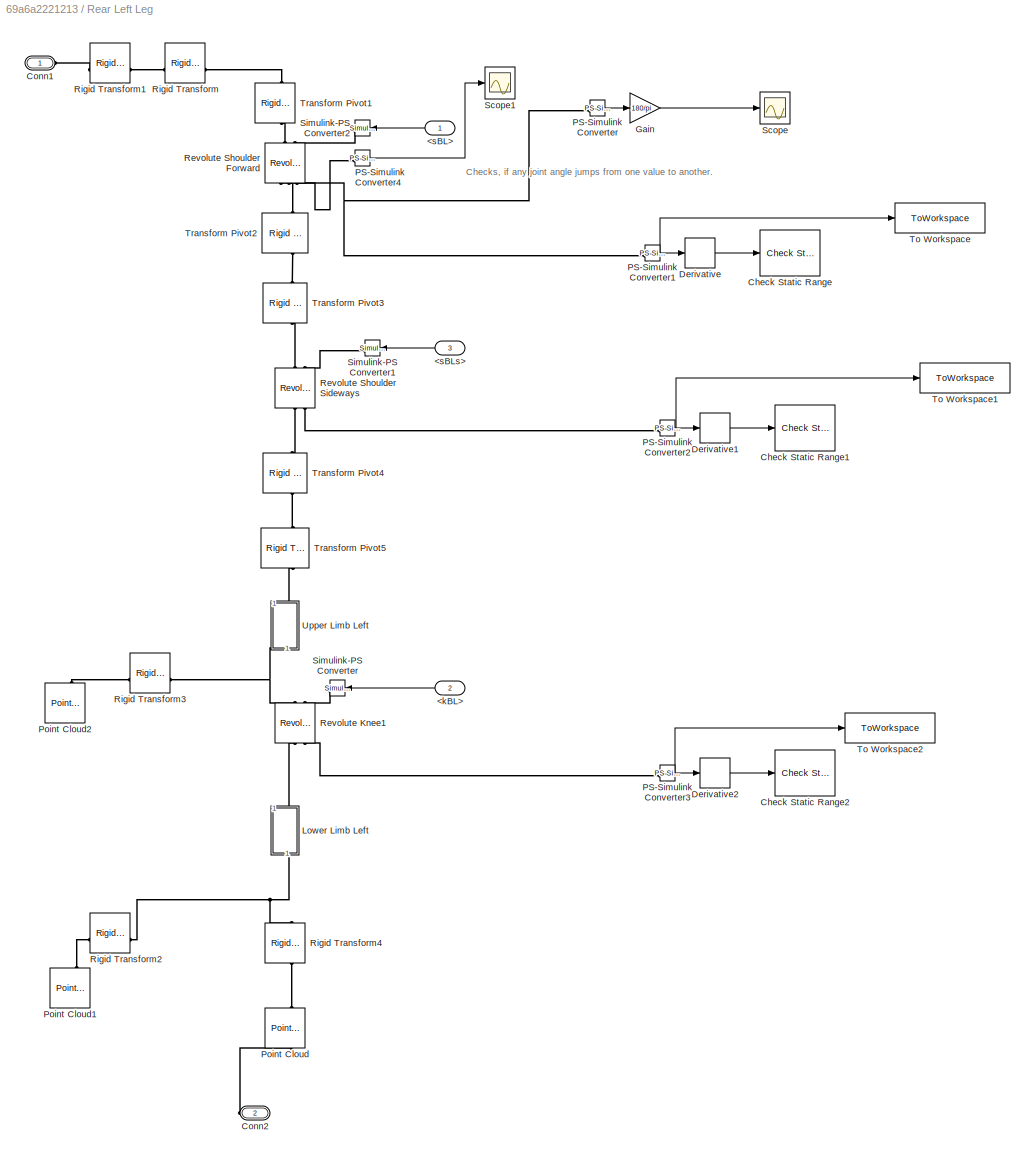
BLOCK [SubSystem] Rear Left Leg
  PortSchema = {"entries":[{"content":{"sides":[{"content":{},"type":"ConnectorPlacement.EquallySpacedRectSide","uuid":"4058ee2b-9772-4aa9-ad2c-dc188ae6aecd"},{"content":{"connectorIds":["In1","In2","In3"],"side":"RIGHT"},"type":"ConnectorPlacement.EquallySpacedRectSide","uuid":"c8f5ac60-63ea-4dfe-ad35-3ef8c1bdb1d6"},{"content":{"connectorIds":["LConn1"],"side":"TOP"},"type":"ConnectorPlacement.EquallySpacedRect...<+389ch>
BLOCK [Inport] Rear Left Leg/<kBL>
  NameLocation = top
  Port = 2
BLOCK [Inport] Rear Left Leg/<sBL>
  NameLocation = top
BLOCK [Inport] Rear Left Leg/<sBLs>
  NameLocation = top
  Port = 3
BLOCK [Reference] Rear Left Leg/Check Static Range  REF=simulink/Model
Verification/Check 
Static Range
  Description = -max_Joint_change <= u <= max_Joint_change
  SourceBlock = simulink/Model\nVerification/Check \nStatic Range
  SourceType = Checks_SRange
BLOCK [Reference] Rear Left Leg/Check Static Range1  REF=simulink/Model
Verification/Check 
Static Range
  Description = -max_Joint_change <= u <= max_Joint_change
  SourceBlock = simulink/Model\nVerification/Check \nStatic Range
  SourceType = Checks_SRange
BLOCK [Reference] Rear Left Leg/Check Static Range2  REF=simulink/Model
Verification/Check 
Static Range
  Description = -max_Joint_change <= u <= max_Joint_change
  SourceBlock = simulink/Model\nVerification/Check \nStatic Range
  SourceType = Checks_SRange
BLOCK [PMIOPort] Rear Left Leg/Conn1
  Side = Left
BLOCK [PMIOPort] Rear Left Leg/Conn2
  Port = 2
  Side = Right
BLOCK [Derivative] Rear Left Leg/Derivative
BLOCK [Derivative] Rear Left Leg/Derivative1
BLOCK [Derivative] Rear Left Leg/Derivative2
BLOCK [Gain] Rear Left Leg/Gain
  Gain = 180/pi
BLOCK [SubSystem] Rear Left Leg/Lower Limb Left
  NameLocation = left
BLOCK [Reference] Rear Left Leg/Lower Limb Left/Ball1  REF=sm_lib/Body Elements/Spherical Solid
  SourceBlock = sm_lib/Body Elements/Spherical Solid
  SourceType = Spherical Solid
BLOCK [Reference] Rear Left Leg/Lower Limb Left/BaseLowerLimb  REF=sm_lib/Body Elements/Brick Solid
  NameLocation = left
  SourceBlock = sm_lib/Body Elements/Brick Solid
  SourceType = Brick Solid
BLOCK [Reference] Rear Left Leg/Lower Limb Left/CADLowerLimb  REF=sm_lib/Body Elements/File Solid
  NameLocation = right
  SourceBlock = sm_lib/Body Elements/File Solid
  SourceType = File Solid
BLOCK [PMIOPort] Rear Left Leg/Lower Limb Left/L
  NameLocation = left
  Port = 2
  Side = Right
BLOCK [Reference] Rear Left Leg/Lower Limb Left/Rigid Transform  REF=sm_lib/Frames and
Transforms/Rigid
Transform
  NameLocation = left
  SourceBlock = sm_lib/Frames and\nTransforms/Rigid\nTransform
  SourceType = Rigid\nTransform
BLOCK [Reference] Rear Left Leg/Lower Limb Left/Transform Shoulder  REF=sm_lib/Frames and
Transforms/Rigid
Transform
  NameLocation = left
  SourceBlock = sm_lib/Frames and\nTransforms/Rigid\nTransform
  SourceType = Rigid\nTransform
BLOCK [Reference] Rear Left Leg/Lower Limb Left/Transform Upper Knee  REF=sm_lib/Frames and
Transforms/Rigid
Transform
  NameLocation = left
  SourceBlock = sm_lib/Frames and\nTransforms/Rigid\nTransform
  SourceType = Rigid\nTransform
BLOCK [PMIOPort] Rear Left Leg/Lower Limb Left/U
  NameLocation = left
  Side = Left
BLOCK [Reference] Rear Left Leg/PS-Simulink Converter  REF=nesl_utility/PS-Simulink
Converter
  SourceBlock = nesl_utility/PS-Simulink\nConverter
  SourceType = PS-Simulink\nConverter
BLOCK [Reference] Rear Left Leg/PS-Simulink Converter1  REF=nesl_utility/PS-Simulink
Converter
  SourceBlock = nesl_utility/PS-Simulink\nConverter
  SourceType = PS-Simulink\nConverter
BLOCK [Reference] Rear Left Leg/PS-Simulink Converter2  REF=nesl_utility/PS-Simulink
Converter
  SourceBlock = nesl_utility/PS-Simulink\nConverter
  SourceType = PS-Simulink\nConverter
BLOCK [Reference] Rear Left Leg/PS-Simulink Converter3  REF=nesl_utility/PS-Simulink
Converter
  SourceBlock = nesl_utility/PS-Simulink\nConverter
  SourceType = PS-Simulink\nConverter
BLOCK [Reference] Rear Left Leg/PS-Simulink Converter4  REF=nesl_utility/PS-Simulink
Converter
  SourceBlock = nesl_utility/PS-Simulink\nConverter
  SourceType = PS-Simulink\nConverter
BLOCK [Reference] Rear Left Leg/Point Cloud  REF=sm_lib/Curves and Surfaces/Point Cloud
  NameLocation = left
  SourceBlock = sm_lib/Curves and Surfaces/Point Cloud
  SourceType = Point Cloud
BLOCK [Reference] Rear Left Leg/Point Cloud1  REF=sm_lib/Curves and Surfaces/Point Cloud
  Commented = on
  NameLocation = left
  SourceBlock = sm_lib/Curves and Surfaces/Point Cloud
  SourceType = Point Cloud
BLOCK [Reference] Rear Left Leg/Point Cloud2  REF=sm_lib/Curves and Surfaces/Point Cloud
  Commented = on
  NameLocation = left
  SourceBlock = sm_lib/Curves and Surfaces/Point Cloud
  SourceType = Point Cloud
BLOCK [Reference] Rear Left Leg/Revolute Knee1  REF=sm_lib/Joints/Revolute Joint
  NameLocation = left
  SourceBlock = sm_lib/Joints/Revolute Joint
  SourceType = Revolute Joint
BLOCK [Reference] Rear Left Leg/Revolute Shoulder Forward  REF=sm_lib/Joints/Revolute Joint
  NameLocation = left
  SourceBlock = sm_lib/Joints/Revolute Joint
  SourceType = Revolute Joint
BLOCK [Reference] Rear Left Leg/Revolute Shoulder Sideways  REF=sm_lib/Joints/Revolute Joint
  NameLocation = left
  SourceBlock = sm_lib/Joints/Revolute Joint
  SourceType = Revolute Joint
BLOCK [Reference] Rear Left Leg/Rigid Transform  REF=sm_lib/Frames and
Transforms/Rigid
Transform
  SourceBlock = sm_lib/Frames and\nTransforms/Rigid\nTransform
  SourceType = Rigid\nTransform
BLOCK [Reference] Rear Left Leg/Rigid Transform1  REF=sm_lib/Frames and
Transforms/Rigid
Transform
  SourceBlock = sm_lib/Frames and\nTransforms/Rigid\nTransform
  SourceType = Rigid\nTransform
BLOCK [Reference] Rear Left Leg/Rigid Transform2  REF=sm_lib/Frames and
Transforms/Rigid
Transform
  Commented = on
  SourceBlock = sm_lib/Frames and\nTransforms/Rigid\nTransform
  SourceType = Rigid\nTransform
BLOCK [Reference] Rear Left Leg/Rigid Transform3  REF=sm_lib/Frames and
Transforms/Rigid
Transform
  Commented = on
  SourceBlock = sm_lib/Frames and\nTransforms/Rigid\nTransform
  SourceType = Rigid\nTransform
BLOCK [Reference] Rear Left Leg/Rigid Transform4  REF=sm_lib/Frames and
Transforms/Rigid
Transform
  NameLocation = left
  SourceBlock = sm_lib/Frames and\nTransforms/Rigid\nTransform
  SourceType = Rigid\nTransform
BLOCK [Scope] Rear Left Leg/Scope
  Floating = off
  NumInputPorts = 1
  ScopeSpecificationString = Simulink.scopes.TimeScopeBlockCfg('CurrentConfiguration', extmgr.ConfigurationSet(extmgr.Configuration('Core','General UI',true),extmgr.Configuration('Core','Source UI',true),extmgr.Configuration('Sources','WiredSimulink',true,'DataLoggingVariableName','ScopeData1'),extmgr.Configuration('Visuals','Time Domain',true,'SerializedDisplays',{struct('MinYLimReal','10.36218','MaxYLimReal','59.3939','YLab...<+1454ch>
BLOCK [Scope] Rear Left Leg/Scope1
  Floating = off
  NumInputPorts = 1
  ScopeSpecificationString = Simulink.scopes.TimeScopeBlockCfg('CurrentConfiguration', extmgr.ConfigurationSet(extmgr.Configuration('Core','General UI',true),extmgr.Configuration('Core','Source UI',true),extmgr.Configuration('Sources','WiredSimulink',true,'DataLoggingVariableName','ScopeData1'),extmgr.Configuration('Visuals','Time Domain',true,'SerializedDisplays',{struct('MinYLimReal','-11.50885','MaxYLimReal','7.16336','YLa...<+1474ch>
BLOCK [Reference] Rear Left Leg/Simulink-PS Converter  REF=nesl_utility/Simulink-PS
Converter
  NameLocation = top
  SourceBlock = nesl_utility/Simulink-PS\nConverter
  SourceType = Simulink-PS\nConverter
BLOCK [Reference] Rear Left Leg/Simulink-PS Converter1  REF=nesl_utility/Simulink-PS
Converter
  NameLocation = top
  SourceBlock = nesl_utility/Simulink-PS\nConverter
  SourceType = Simulink-PS\nConverter
BLOCK [Reference] Rear Left Leg/Simulink-PS Converter2  REF=nesl_utility/Simulink-PS
Converter
  NameLocation = top
  SourceBlock = nesl_utility/Simulink-PS\nConverter
  SourceType = Simulink-PS\nConverter
BLOCK [ToWorkspace] Rear Left Leg/To Workspace
  FixptAsFi = on
  MaxDataPoints = inf
  SampleTime = -1
  SaveFormat = Structure With Time
  VariableName = RL_Sh
BLOCK [ToWorkspace] Rear Left Leg/To Workspace1
  FixptAsFi = on
  MaxDataPoints = inf
  SampleTime = -1
  SaveFormat = Structure
  VariableName = RL_Si
BLOCK [ToWorkspace] Rear Left Leg/To Workspace2
  FixptAsFi = on
  MaxDataPoints = inf
  SampleTime = -1
  SaveFormat = Structure
  VariableName = RL_Kn
BLOCK [Reference] Rear Left Leg/Transform Pivot1  REF=sm_lib/Frames and
Transforms/Rigid
Transform
  NameLocation = left
  SourceBlock = sm_lib/Frames and\nTransforms/Rigid\nTransform
  SourceType = Rigid\nTransform
BLOCK [Reference] Rear Left Leg/Transform Pivot2  REF=sm_lib/Frames and
Transforms/Rigid
Transform
  NameLocation = left
  SourceBlock = sm_lib/Frames and\nTransforms/Rigid\nTransform
  SourceType = Rigid\nTransform
BLOCK [Reference] Rear Left Leg/Transform Pivot3  REF=sm_lib/Frames and
Transforms/Rigid
Transform
  NameLocation = left
  SourceBlock = sm_lib/Frames and\nTransforms/Rigid\nTransform
  SourceType = Rigid\nTransform
BLOCK [Reference] Rear Left Leg/Transform Pivot4  REF=sm_lib/Frames and
Transforms/Rigid
Transform
  NameLocation = left
  SourceBlock = sm_lib/Frames and\nTransforms/Rigid\nTransform
  SourceType = Rigid\nTransform
BLOCK [Reference] Rear Left Leg/Transform Pivot5  REF=sm_lib/Frames and
Transforms/Rigid
Transform
  NameLocation = left
  SourceBlock = sm_lib/Frames and\nTransforms/Rigid\nTransform
  SourceType = Rigid\nTransform
BLOCK [SubSystem] Rear Left Leg/Upper Limb Left
  NameLocation = left
BLOCK [Reference] Rear Left Leg/Upper Limb Left/BaseUpperLimb  REF=sm_lib/Body Elements/Brick Solid
  NameLocation = left
  SourceBlock = sm_lib/Body Elements/Brick Solid
  SourceType = Brick Solid
BLOCK [Reference] Rear Left Leg/Upper Limb Left/CADUpperLimb  REF=sm_lib/Body Elements/File Solid
  NameLocation = right
  SourceBlock = sm_lib/Body Elements/File Solid
  SourceType = File Solid
BLOCK [PMIOPort] Rear Left Leg/Upper Limb Left/L
  NameLocation = left
  Port = 2
  Side = Right
BLOCK [Reference] Rear Left Leg/Upper Limb Left/Transform Shoulder  REF=sm_lib/Frames and
Transforms/Rigid
Transform
  NameLocation = left
  SourceBlock = sm_lib/Frames and\nTransforms/Rigid\nTransform
  SourceType = Rigid\nTransform
BLOCK [Reference] Rear Left Leg/Upper Limb Left/Transform Upper Knee  REF=sm_lib/Frames and
Transforms/Rigid
Transform
  NameLocation = left
  SourceBlock = sm_lib/Frames and\nTransforms/Rigid\nTransform
  SourceType = Rigid\nTransform
BLOCK [PMIOPort] Rear Left Leg/Upper Limb Left/U
  NameLocation = left
  Side = Left
BLOCK [SubSystem] Rear Right Leg
  PortSchema = {"entries":[{"content":{"sides":[{"content":{"connectorIds":["In1","In2","In3"]},"type":"ConnectorPlacement.EquallySpacedRectSide","uuid":"2529c462-a6c0-4710-b525-cfddd2fee269"},{"content":{"side":"RIGHT"},"type":"ConnectorPlacement.EquallySpacedRectSide","uuid":"d7540933-492d-4a81-be86-0602190745ed"},{"content":{"connectorIds":["LConn1"],"side":"TOP"},"type":"ConnectorPlacement.EquallySpacedRectS...<+388ch>
BLOCK [Inport] Rear Right Leg/<kBR>
  Port = 2
BLOCK [Inport] Rear Right Leg/<sBR>
BLOCK [Inport] Rear Right Leg/<sBRs>
  Port = 3
BLOCK [Reference] Rear Right Leg/Check Static Range  REF=simulink/Model
Verification/Check 
Static Range
  Description = -max_Joint_change <= u <= max_Joint_change
  SourceBlock = simulink/Model\nVerification/Check \nStatic Range
  SourceType = Checks_SRange
BLOCK [Reference] Rear Right Leg/Check Static Range1  REF=simulink/Model
Verification/Check 
Static Range
  Description = -max_Joint_change <= u <= max_Joint_change
  SourceBlock = simulink/Model\nVerification/Check \nStatic Range
  SourceType = Checks_SRange
BLOCK [Reference] Rear Right Leg/Check Static Range2  REF=simulink/Model
Verification/Check 
Static Range
  Description = -max_Joint_change <= u <= max_Joint_change
  SourceBlock = simulink/Model\nVerification/Check \nStatic Range
  SourceType = Checks_SRange
BLOCK [PMIOPort] Rear Right Leg/Conn1
  Side = Left
BLOCK [Derivative] Rear Right Leg/Derivative
BLOCK [Derivative] Rear Right Leg/Derivative1
BLOCK [Derivative] Rear Right Leg/Derivative2
BLOCK [Reference] Rear Right Leg/File Solid  REF=sm_lib/Body Elements/File Solid
  Commented = on
  SourceBlock = sm_lib/Body Elements/File Solid
  SourceType = File Solid
BLOCK [SubSystem] Rear Right Leg/Lower Limb Right
  NameLocation = left
BLOCK [Reference] Rear Right Leg/Lower Limb Right/Ball1  REF=sm_lib/Body Elements/Spherical Solid
  SourceBlock = sm_lib/Body Elements/Spherical Solid
  SourceType = Spherical Solid
BLOCK [Reference] Rear Right Leg/Lower Limb Right/BaseLowerLimb  REF=sm_lib/Body Elements/Brick Solid
  NameLocation = left
  SourceBlock = sm_lib/Body Elements/Brick Solid
  SourceType = Brick Solid
BLOCK [Reference] Rear Right Leg/Lower Limb Right/CADLowerLimb  REF=sm_lib/Body Elements/File Solid
  NameLocation = right
  SourceBlock = sm_lib/Body Elements/File Solid
  SourceType = File Solid
BLOCK [PMIOPort] Rear Right Leg/Lower Limb Right/L
  NameLocation = left
  Port = 2
  Side = Right
BLOCK [Reference] Rear Right Leg/Lower Limb Right/Rigid Transform  REF=sm_lib/Frames and
Transforms/Rigid
Transform
  NameLocation = left
  SourceBlock = sm_lib/Frames and\nTransforms/Rigid\nTransform
  SourceType = Rigid\nTransform
BLOCK [Reference] Rear Right Leg/Lower Limb Right/Transform Shoulder  REF=sm_lib/Frames and
Transforms/Rigid
Transform
  NameLocation = left
  SourceBlock = sm_lib/Frames and\nTransforms/Rigid\nTransform
  SourceType = Rigid\nTransform
BLOCK [Reference] Rear Right Leg/Lower Limb Right/Transform Upper Knee  REF=sm_lib/Frames and
Transforms/Rigid
Transform
  NameLocation = left
  SourceBlock = sm_lib/Frames and\nTransforms/Rigid\nTransform
  SourceType = Rigid\nTransform
BLOCK [PMIOPort] Rear Right Leg/Lower Limb Right/U
  NameLocation = left
  Side = Left
BLOCK [Reference] Rear Right Leg/PS-Simulink Converter1  REF=nesl_utility/PS-Simulink
Converter
  SourceBlock = nesl_utility/PS-Simulink\nConverter
  SourceType = PS-Simulink\nConverter
BLOCK [Reference] Rear Right Leg/PS-Simulink Converter2  REF=nesl_utility/PS-Simulink
Converter
  SourceBlock = nesl_utility/PS-Simulink\nConverter
  SourceType = PS-Simulink\nConverter
BLOCK [Reference] Rear Right Leg/PS-Simulink Converter3  REF=nesl_utility/PS-Simulink
Converter
  SourceBlock = nesl_utility/PS-Simulink\nConverter
  SourceType = PS-Simulink\nConverter
BLOCK [Reference] Rear Right Leg/Point Cloud  REF=sm_lib/Curves and Surfaces/Point Cloud
  NameLocation = left
  SourceBlock = sm_lib/Curves and Surfaces/Point Cloud
  SourceType = Point Cloud
BLOCK [PMIOPort] Rear Right Leg/RR
  Port = 2
  Side = Right
BLOCK [Reference] Rear Right Leg/Revolute Knee  REF=sm_lib/Joints/Revolute Joint
  NameLocation = left
  SourceBlock = sm_lib/Joints/Revolute Joint
  SourceType = Revolute Joint
BLOCK [Reference] Rear Right Leg/Revolute Shoulder Forward  REF=sm_lib/Joints/Revolute Joint
  NameLocation = left
  SourceBlock = sm_lib/Joints/Revolute Joint
  SourceType = Revolute Joint
BLOCK [Reference] Rear Right Leg/Revolute Shoulder Sideways  REF=sm_lib/Joints/Revolute Joint
  NameLocation = left
  SourceBlock = sm_lib/Joints/Revolute Joint
  SourceType = Revolute Joint
BLOCK [Reference] Rear Right Leg/Rigid Transform1  REF=sm_lib/Frames and
Transforms/Rigid
Transform
  SourceBlock = sm_lib/Frames and\nTransforms/Rigid\nTransform
  SourceType = Rigid\nTransform
BLOCK [Reference] Rear Right Leg/Rigid Transform2  REF=sm_lib/Frames and
Transforms/Rigid
Transform
  NameLocation = top
  SourceBlock = sm_lib/Frames and\nTransforms/Rigid\nTransform
  SourceType = Rigid\nTransform
BLOCK [Reference] Rear Right Leg/Rigid Transform4  REF=sm_lib/Frames and
Transforms/Rigid
Transform
  NameLocation = left
  SourceBlock = sm_lib/Frames and\nTransforms/Rigid\nTransform
  SourceType = Rigid\nTransform
BLOCK [Reference] Rear Right Leg/Simulink-PS Converter1  REF=nesl_utility/Simulink-PS
Converter
  NameLocation = top
  SourceBlock = nesl_utility/Simulink-PS\nConverter
  SourceType = Simulink-PS\nConverter
BLOCK [Reference] Rear Right Leg/Simulink-PS Converter2  REF=nesl_utility/Simulink-PS
Converter
  NameLocation = top
  SourceBlock = nesl_utility/Simulink-PS\nConverter
  SourceType = Simulink-PS\nConverter
BLOCK [Reference] Rear Right Leg/Simulink-PS Converter3  REF=nesl_utility/Simulink-PS
Converter
  NameLocation = top
  SourceBlock = nesl_utility/Simulink-PS\nConverter
  SourceType = Simulink-PS\nConverter
BLOCK [ToWorkspace] Rear Right Leg/To Workspace
  FixptAsFi = on
  MaxDataPoints = inf
  SampleTime = -1
  SaveFormat = Structure
  VariableName = RR_Sh
BLOCK [ToWorkspace] Rear Right Leg/To Workspace1
  FixptAsFi = on
  MaxDataPoints = inf
  SampleTime = -1
  SaveFormat = Structure
  VariableName = RR_Si
BLOCK [ToWorkspace] Rear Right Leg/To Workspace2
  FixptAsFi = on
  MaxDataPoints = inf
  SampleTime = -1
  SaveFormat = Structure
  VariableName = RR_Kn
BLOCK [Reference] Rear Right Leg/Transform Pivot  REF=sm_lib/Frames and
Transforms/Rigid
Transform
  NameLocation = left
  SourceBlock = sm_lib/Frames and\nTransforms/Rigid\nTransform
  SourceType = Rigid\nTransform
BLOCK [Reference] Rear Right Leg/Transform Pivot2  REF=sm_lib/Frames and
Transforms/Rigid
Transform
  NameLocation = left
  SourceBlock = sm_lib/Frames and\nTransforms/Rigid\nTransform
  SourceType = Rigid\nTransform
BLOCK [Reference] Rear Right Leg/Transform Pivot3  REF=sm_lib/Frames and
Transforms/Rigid
Transform
  NameLocation = left
  SourceBlock = sm_lib/Frames and\nTransforms/Rigid\nTransform
  SourceType = Rigid\nTransform
BLOCK [Reference] Rear Right Leg/Transform Pivot4  REF=sm_lib/Frames and
Transforms/Rigid
Transform
  NameLocation = left
  SourceBlock = sm_lib/Frames and\nTransforms/Rigid\nTransform
  SourceType = Rigid\nTransform
BLOCK [Reference] Rear Right Leg/Transform Pivot5  REF=sm_lib/Frames and
Transforms/Rigid
Transform
  NameLocation = left
  SourceBlock = sm_lib/Frames and\nTransforms/Rigid\nTransform
  SourceType = Rigid\nTransform
BLOCK [SubSystem] Rear Right Leg/Upper Limb Right
  NameLocation = left
BLOCK [Reference] Rear Right Leg/Upper Limb Right/BaseUpperLimb  REF=sm_lib/Body Elements/Brick Solid
  NameLocation = left
  SourceBlock = sm_lib/Body Elements/Brick Solid
  SourceType = Brick Solid
BLOCK [Reference] Rear Right Leg/Upper Limb Right/CADUpperLimb  REF=sm_lib/Body Elements/File Solid
  NameLocation = right
  SourceBlock = sm_lib/Body Elements/File Solid
  SourceType = File Solid
BLOCK [PMIOPort] Rear Right Leg/Upper Limb Right/L
  NameLocation = left
  Port = 2
  Side = Right
BLOCK [Reference] Rear Right Leg/Upper Limb Right/Transform Shoulder  REF=sm_lib/Frames and
Transforms/Rigid
Transform
  NameLocation = left
  SourceBlock = sm_lib/Frames and\nTransforms/Rigid\nTransform
  SourceType = Rigid\nTransform
BLOCK [Reference] Rear Right Leg/Upper Limb Right/Transform Upper Knee  REF=sm_lib/Frames and
Transforms/Rigid
Transform
  NameLocation = left
  SourceBlock = sm_lib/Frames and\nTransforms/Rigid\nTransform
  SourceType = Rigid\nTransform
BLOCK [PMIOPort] Rear Right Leg/Upper Limb Right/U
  NameLocation = left
  Side = Left
BLOCK [Reference] Rectangular Joint  REF=sm_lib/Joints/Rectangular
Joint
  NameLocation = left
  SourceBlock = sm_lib/Joints/Rectangular\nJoint
  SourceType = Rectangular\nJoint
BLOCK [Reference] Rigid Transform  REF=sm_lib/Frames and
Transforms/Rigid
Transform
  SourceBlock = sm_lib/Frames and\nTransforms/Rigid\nTransform
  SourceType = Rigid\nTransform
BLOCK [Reference] Rigid Transform1  REF=sm_lib/Frames and
Transforms/Rigid
Transform
  Commented = on
  NameLocation = left
  SourceBlock = sm_lib/Frames and\nTransforms/Rigid\nTransform
  SourceType = Rigid\nTransform
BLOCK [Scope] Scope
  Floating = off
  NumInputPorts = 4
  ScopeSpecificationString = Simulink.scopes.TimeScopeBlockCfg('CurrentConfiguration', extmgr.ConfigurationSet(extmgr.Configuration('Core','General UI',true),extmgr.Configuration('Core','Source UI',true),extmgr.Configuration('Sources','WiredSimulink',true,'DataLoggingVariableName','ScopeData1'),extmgr.Configuration('Visuals','Time Domain',true,'SerializedDisplays',{struct('MinYLimReal','-0.03957','MaxYLimReal','0.36251','YLab...<+1657ch>
BLOCK [Scope] Scope1
  Floating = off
  NameLocation = top
  NumInputPorts = 1
  ScopeSpecificationString = Simulink.scopes.TimeScopeBlockCfg('CurrentConfiguration', extmgr.ConfigurationSet(extmgr.Configuration('Core','General UI',true),extmgr.Configuration('Core','Source UI',true),extmgr.Configuration('Sources','WiredSimulink',true,'DataLoggingVariableName','ScopeData1'),extmgr.Configuration('Visuals','Time Domain',true,'SerializedDisplays',{struct('MinYLimReal','0.0458','MaxYLimReal','2.57874','YLabel...<+1446ch>
BLOCK [Scope] Scope2
  Floating = off
  NumInputPorts = 4
  ScopeSpecificationString = Simulink.scopes.TimeScopeBlockCfg('CurrentConfiguration', extmgr.ConfigurationSet(extmgr.Configuration('Core','General UI',true),extmgr.Configuration('Core','Source UI',true),extmgr.Configuration('Sources','WiredSimulink',true,'DataLoggingVariableName','ScopeData1'),extmgr.Configuration('Visuals','Time Domain',true,'SerializedDisplays',{struct('MinYLimReal','-1.00000','MaxYLimReal','1.00000','YLab...<+1667ch>
BLOCK [Scope] Scope3
  Floating = off
  NameLocation = top
  NumInputPorts = 1
  ScopeSpecificationString = Simulink.scopes.TimeScopeBlockCfg('CurrentConfiguration', extmgr.ConfigurationSet(extmgr.Configuration('Core','General UI',true),extmgr.Configuration('Core','Source UI',true),extmgr.Configuration('Sources','WiredSimulink',true,'DataLoggingVariableName','ScopeData2'),extmgr.Configuration('Visuals','Time Domain',true,'SerializedDisplays',{struct('MinYLimReal','0.0458','MaxYLimReal','2.57874','YLabel...<+1446ch>
BLOCK [Reference] Solver Configuration  REF=nesl_utility/Solver
Configuration
  SourceBlock = nesl_utility/Solver\nConfiguration
  SourceType = Solver\nConfiguration
BLOCK [ToWorkspace] To Workspace
  FixptAsFi = on
  MaxDataPoints = inf
  NameLocation = top
  SampleTime = -1
  SaveFormat = Structure With Time
  VariableName = x
BLOCK [SubSystem] Torso
  PortSchema = {"entries":[{"content":{"sides":[{"content":{"connectorIds":["LConn1"]},"type":"ConnectorPlacement.EquallySpacedRectSide","uuid":"6f6cbbfa-3492-491c-b82f-1f97cba97e0a"},{"content":{"connectorIds":["RConn1"],"side":"RIGHT"},"type":"ConnectorPlacement.EquallySpacedRectSide","uuid":"cfd52f61-56a2-4a5e-9a78-46b74bcce56f"},{"content":{"side":"TOP"},"type":"ConnectorPlacement.EquallySpacedRectSide","uui...<+379ch>
BLOCK [SubSystem] Torso/2x 1-DOF Joints
  Commented = on
BLOCK [Reference] Torso/2x 1-DOF Joints/Cartesian Joint  REF=sm_lib/Joints/Cartesian
Joint
  SourceBlock = sm_lib/Joints/Cartesian\nJoint
  SourceType = Cartesian\nJoint
BLOCK [PMIOPort] Torso/2x 1-DOF Joints/Conn1
  Side = Left
BLOCK [PMIOPort] Torso/2x 1-DOF Joints/Conn2
  Port = 2
  Side = Right
BLOCK [Reference] Torso/2x 1-DOF Joints/Prismatic Joint  REF=sm_lib/Joints/Prismatic
Joint
  Commented = on
  SourceBlock = sm_lib/Joints/Prismatic\nJoint
  SourceType = Prismatic\nJoint
BLOCK [Reference] Torso/2x 1-DOF Joints/Prismatic Joint1  REF=sm_lib/Joints/Prismatic
Joint
  Commented = on
  SourceBlock = sm_lib/Joints/Prismatic\nJoint
  SourceType = Prismatic\nJoint
BLOCK [Reference] Torso/2x 1-DOF Joints/Rigid Transform1  REF=sm_lib/Frames and
Transforms/Rigid
Transform
  NameLocation = top
  SourceBlock = sm_lib/Frames and\nTransforms/Rigid\nTransform
  SourceType = Rigid\nTransform
BLOCK [Reference] Torso/2x 1-DOF Joints/Rigid Transform2  REF=sm_lib/Frames and
Transforms/Rigid
Transform
  NameLocation = top
  SourceBlock = sm_lib/Frames and\nTransforms/Rigid\nTransform
  SourceType = Rigid\nTransform
BLOCK [Reference] Torso/2x 1-DOF Joints/Rigid Transform5  REF=sm_lib/Frames and
Transforms/Rigid
Transform
  Commented = on
  NameLocation = top
  SourceBlock = sm_lib/Frames and\nTransforms/Rigid\nTransform
  SourceType = Rigid\nTransform
BLOCK [SubSystem] Torso/6-DOF Joint
  Commented = on
BLOCK [Reference] Torso/6-DOF Joint/6-DOF Joint  REF=sm_lib/Joints/6-DOF Joint
  SourceBlock = sm_lib/Joints/6-DOF Joint
  SourceType = 6-DOF Joint
BLOCK [PMIOPort] Torso/6-DOF Joint/Conn1
  Side = Left
BLOCK [PMIOPort] Torso/6-DOF Joint/Conn2
  Port = 2
  Side = Right
BLOCK [Reference] Torso/6-DOF Joint/Rigid Transform4  REF=sm_lib/Frames and
Transforms/Rigid
Transform
  NameLocation = top
  SourceBlock = sm_lib/Frames and\nTransforms/Rigid\nTransform
  SourceType = Rigid\nTransform
BLOCK [PMIOPort] Torso/Body
  NameLocation = right
  Side = Left
BLOCK [Reference] Torso/Brick Solid  REF=sm_lib/Body Elements/Brick Solid
  Commented = on
  NameLocation = right
  SourceBlock = sm_lib/Body Elements/Brick Solid
  SourceType = Brick Solid
BLOCK [Reference] Torso/Brick Solid1  REF=sm_lib/Body Elements/Brick Solid
  Commented = on
  NameLocation = right
  SourceBlock = sm_lib/Body Elements/Brick Solid
  SourceType = Brick Solid
BLOCK [Reference] Torso/Brick Solid2  REF=sm_lib/Body Elements/Brick Solid
  Commented = on
  NameLocation = right
  SourceBlock = sm_lib/Body Elements/Brick Solid
  SourceType = Brick Solid
BLOCK [Reference] Torso/Brick Solid3  REF=sm_lib/Body Elements/Brick Solid
  Commented = on
  NameLocation = right
  SourceBlock = sm_lib/Body Elements/Brick Solid
  SourceType = Brick Solid
BLOCK [Reference] Torso/Brick Solid4  REF=sm_lib/Body Elements/Brick Solid
  NameLocation = top
  SourceBlock = sm_lib/Body Elements/Brick Solid
  SourceType = Brick Solid
BLOCK [Reference] Torso/Chassis  REF=sm_lib/Body Elements/Brick Solid
  NameLocation = left
  SourceBlock = sm_lib/Body Elements/Brick Solid
  SourceType = Brick Solid
BLOCK [PMIOPort] Torso/Conn1
  NameLocation = right
  Port = 2
  Side = Right
BLOCK [Reference] Torso/Contact  REF=sm_lib/Forces and
Torques/Spatial
Contact Force
  Commented = on
  NameLocation = right
  SourceBlock = sm_lib/Forces and\nTorques/Spatial\nContact Force
  SourceType = Spatial\nContact Force
BLOCK [Reference] Torso/Contact Force Ball Ground RL  REF=sm_lib/Forces and
Torques/Spatial
Contact Force
  SourceBlock = sm_lib/Forces and\nTorques/Spatial\nContact Force
  SourceType = Spatial\nContact Force
BLOCK [Reference] Torso/Contact1  REF=sm_lib/Forces and
Torques/Spatial
Contact Force
  Commented = on
  NameLocation = right
  SourceBlock = sm_lib/Forces and\nTorques/Spatial\nContact Force
  SourceType = Spatial\nContact Force
BLOCK [Reference] Torso/Contact2  REF=sm_lib/Forces and
Torques/Spatial
Contact Force
  Commented = on
  NameLocation = right
  SourceBlock = sm_lib/Forces and\nTorques/Spatial\nContact Force
  SourceType = Spatial\nContact Force
BLOCK [Reference] Torso/Contact3  REF=sm_lib/Forces and
Torques/Spatial
Contact Force
  Commented = on
  NameLocation = right
  SourceBlock = sm_lib/Forces and\nTorques/Spatial\nContact Force
  SourceType = Spatial\nContact Force
BLOCK [Reference] Torso/Contact4  REF=sm_lib/Forces and
Torques/Spatial
Contact Force
  Commented = on
  NameLocation = top
  SourceBlock = sm_lib/Forces and\nTorques/Spatial\nContact Force
  SourceType = Spatial\nContact Force
BLOCK [Reference] Torso/Cylindrical Solid  REF=sm_lib/Body Elements/Cylindrical Solid
  Commented = on
  NameLocation = right
  SourceBlock = sm_lib/Body Elements/Cylindrical Solid
  SourceType = Cylindrical Solid
BLOCK [Reference] Torso/File Solid  REF=sm_lib/Body Elements/File Solid
  NameLocation = right
  SourceBlock = sm_lib/Body Elements/File Solid
  SourceType = File Solid
BLOCK [PMIOPort] Torso/PayloadContact
  NameLocation = top
  Port = 3
  Side = Right
BLOCK [Reference] Torso/Point Cloud  REF=sm_lib/Curves and Surfaces/Point Cloud
  Commented = on
  SourceBlock = sm_lib/Curves and Surfaces/Point Cloud
  SourceType = Point Cloud
BLOCK [Reference] Torso/Point Cloud1  REF=sm_lib/Curves and Surfaces/Point Cloud
  SourceBlock = sm_lib/Curves and Surfaces/Point Cloud
  SourceType = Point Cloud
BLOCK [Reference] Torso/Rigid Transform  REF=sm_lib/Frames and
Transforms/Rigid
Transform
  Commented = on
  SourceBlock = sm_lib/Frames and\nTransforms/Rigid\nTransform
  SourceType = Rigid\nTransform
BLOCK [Reference] Torso/Rigid Transform1  REF=sm_lib/Frames and
Transforms/Rigid
Transform
  Commented = on
  SourceBlock = sm_lib/Frames and\nTransforms/Rigid\nTransform
  SourceType = Rigid\nTransform
BLOCK [Reference] Torso/Rigid Transform2  REF=sm_lib/Frames and
Transforms/Rigid
Transform
  Commented = on
  SourceBlock = sm_lib/Frames and\nTransforms/Rigid\nTransform
  SourceType = Rigid\nTransform
BLOCK [Reference] Torso/Rigid Transform3  REF=sm_lib/Frames and
Transforms/Rigid
Transform
  Commented = on
  SourceBlock = sm_lib/Frames and\nTransforms/Rigid\nTransform
  SourceType = Rigid\nTransform
BLOCK [Reference] Torso/Rigid Transform4  REF=sm_lib/Frames and
Transforms/Rigid
Transform
  SourceBlock = sm_lib/Frames and\nTransforms/Rigid\nTransform
  SourceType = Rigid\nTransform
BLOCK [Reference] Torso/Rigid Transform5  REF=sm_lib/Frames and
Transforms/Rigid
Transform
  NameLocation = left
  SourceBlock = sm_lib/Frames and\nTransforms/Rigid\nTransform
  SourceType = Rigid\nTransform
BLOCK [Reference] Torso/Simulink-PS Converter  REF=nesl_utility/Simulink-PS
Converter
  SourceBlock = nesl_utility/Simulink-PS\nConverter
  SourceType = Simulink-PS\nConverter
BLOCK [Step] Torso/Step
  After = -1
  SampleTime = 0
  Time = 25
BLOCK [Reference] Torso/Weld Joint  REF=sm_lib/Joints/Weld Joint
  SourceBlock = sm_lib/Joints/Weld Joint
  SourceType = Weld Joint
BLOCK [TransferFcn] Transfer Fcn
  Denominator = transferFunVal
  NameLocation = left
BLOCK [TransferFcn] Transfer Fcn1
  Denominator = transferFunVal
BLOCK [TransferFcn] Transfer Fcn2
  Denominator = transferFunVal
BLOCK [TransferFcn] Transfer Fcn3
  Denominator = transferFunVal
BLOCK [Reference] Translation for flying in the air  REF=sm_lib/Frames and
Transforms/Rigid
Transform
  SourceBlock = sm_lib/Frames and\nTransforms/Rigid\nTransform
  SourceType = Rigid\nTransform
BLOCK [Reference] Translation for walking on the ground  REF=sm_lib/Frames and
Transforms/Rigid
Transform
  NameLocation = left
  SourceBlock = sm_lib/Frames and\nTransforms/Rigid\nTransform
  SourceType = Rigid\nTransform
BLOCK [UnitDelay] Unit Delay
  Commented = on
  HasFrameUpgradeWarning = on
  SampleTime = -1
BLOCK [UnitDelay] Unit Delay1
  Commented = on
  HasFrameUpgradeWarning = on
  SampleTime = -1
BLOCK [UnitDelay] Unit Delay4
  Commented = on
  HasFrameUpgradeWarning = on
  NameLocation = left
  SampleTime = -1
BLOCK [Reference] World Frame  REF=sm_lib/Frames and
Transforms/World Frame
  SourceBlock = sm_lib/Frames and\nTransforms/World Frame
  SourceType = World Frame
BLOCK [Reference] Zero Gravity Test  REF=sm_lib/Utilities/Mechanism
Configuration
  Commented = on
  SourceBlock = sm_lib/Utilities/Mechanism\nConfiguration
  SourceType = Mechanism\nConfiguration
BLOCK [Constant] constant
  NameLocation = top
  Value = 0.3
ANNOTATION (root): - All blocks that influence gaits are painted BLUE - All blocks that influence the control of the robot are painted YELLOW - All blocks for debugging / plotting graphs are painted MAGENTA
ANNOTATION (root): Control Output: 0 ... stand still 1 ... walk 2 ... trot 3 ... walk backwards 4 ... walk left 5 ... walk right 6 ... turn left 7 ... turn right
ANNOTATION (root): Goods on the back of the robot.
ANNOTATION (root): If the inclination of the environment changes, this block adds a certain value to the hip angles of the forward legs, that the robot is able to pass the transition phase.
ANNOTATION (root): initial position is not at [0,0] but at [0.3,0.3]
ANNOTATION Environment/Contact Force for Slope: Give the contact block better names - IE FL, FR, RR, RL VERIFY THE NAMES - check the signals
ANNOTATION Environment/Contact Force for Wall: Give the contact block better names - IE FL, FR, RR, RL VERIFY THE NAMES - check the signals
ANNOTATION Front Left Leg: Checks, if any joint angle jumps from one value to another.
ANNOTATION Front Right Leg: Checks, if any joint angle jumps from one value to another.
ANNOTATION Rear Left Leg: Checks, if any joint angle jumps from one value to another.
ANNOTATION Rear Right Leg: Checks, if any joint angle jumps from one value to another.
LINE Add1:1 -> Front Right Leg:1
LINE Add2:1 -> Rear Left Leg:1
LINE Add3:1 -> Rear Right Leg:1
LINE Add4:1 -> Rear Left Leg:3
LINE Add5:1 -> Rear Right Leg:3
LINE Add6:1 -> Front Left Leg:3
LINE Add7:1 -> Front Right Leg:3
NET Add8:1 -> Change of inclination:2, Gait Selector:5
NET Add9:1 -> Change of inclination:1, Gait Selector:4, Scope3:1, To Workspace:1
LINE Add:1 -> Front Left Leg:1
LINE Bus Creator:1 -> Goto:1
LINE Bus Selector1:1 -> Add1:2
LINE Bus Selector1:2 -> Front Right Leg:2
LINE Bus Selector1:3 -> Add7:1
LINE Bus Selector2:1 -> Add2:2
LINE Bus Selector2:2 -> Rear Left Leg:2
LINE Bus Selector2:3 -> Add4:1
LINE Bus Selector3:1 -> Add3:2
LINE Bus Selector3:2 -> Rear Right Leg:2
LINE Bus Selector3:3 -> Add5:1
LINE Bus Selector:1 -> Add:2
LINE Bus Selector:2 -> Front Left Leg:2
LINE Bus Selector:3 -> Add6:1
LINE Change of inclination/Constant1:1 -> Change of inclination/MATLAB Function:3
LINE Change of inclination/Constant2:1 -> Change of inclination/MATLAB Function:4
LINE Change of inclination/Constant3:1 -> Change of inclination/MATLAB Function:1
LINE Change of inclination/Constant:1 -> Change of inclination/MATLAB Function:2
LINE Change of inclination/Control:1 -> Change of inclination/MATLAB Function:11
NET Change of inclination/MATLAB Function:1 -> Change of inclination/Add_angles_Sh_Front:1, Change of inclination/Memory1:1
NET Change of inclination/MATLAB Function:2 -> Change of inclination/Add_angles_Sh_Back:1, Change of inclination/Memory:1
NET Change of inclination/MATLAB Function:3 -> Change of inclination/Add_angles_Si_Left:1, Change of inclination/Memory3:1
NET Change of inclination/MATLAB Function:4 -> Change of inclination/Add_angles_Si_Right:1, Change of inclination/Memory2:1
LINE Change of inclination/MATLAB Function:5 -> Change of inclination/Scope1:1
LINE Change of inclination/Memory1:1 -> Change of inclination/MATLAB Function:7
LINE Change of inclination/Memory2:1 -> Change of inclination/MATLAB Function:10
LINE Change of inclination/Memory3:1 -> Change of inclination/MATLAB Function:9
LINE Change of inclination/Memory4:1 -> Change of inclination/MATLAB Function:6
LINE Change of inclination/Memory5:1 -> Change of inclination/MATLAB Function:5
LINE Change of inclination/Memory:1 -> Change of inclination/MATLAB Function:8
NET Change of inclination/X:1 -> Change of inclination/Memory5:1, Change of inclination/Scope1:2
LINE Change of inclination/Y:1 -> Change of inclination/Memory4:1
NET Change of inclination:1 -> Add1:1, Add:1, Scope2:1
NET Change of inclination:2 -> Add2:1, Add3:1, Scope2:2
NET Change of inclination:3 -> Add4:2, Add6:2, Scope2:3
NET Change of inclination:4 -> Add5:2, Add7:2, Scope2:4
LINE Clock:1 -> Gait Selector:2
NET Control1:1 -> Change of inclination:3, Gait Selector:1, Scope1:1
LINE Control1:2 -> Gait Selector:3
LINE Front Left Leg/<kFL>:1 -> Front Left Leg/Simulink-PS Converter:1
LINE Front Left Leg/<sFL>:1 -> Front Left Leg/Simulink-PS Converter2:1
LINE Front Left Leg/<sFLs>:1 -> Front Left Leg/Simulink-PS Converter1:1
LINE Front Left Leg/Derivative1:1 -> Front Left Leg/Check Static Range1:1
LINE Front Left Leg/Derivative2:1 -> Front Left Leg/Check Static Range2:1
LINE Front Left Leg/Derivative:1 -> Front Left Leg/Check Static Range:1
NET Front Left Leg/PS-Simulink Converter1:1 -> Front Left Leg/Derivative:1, Front Left Leg/To Workspace:1
NET Front Left Leg/PS-Simulink Converter2:1 -> Front Left Leg/Derivative1:1, Front Left Leg/To Workspace1:1
NET Front Left Leg/PS-Simulink Converter3:1 -> Front Left Leg/Derivative2:1, Front Left Leg/To Workspace2:1
LINE Front Right Leg/<kFR>:1 -> Front Right Leg/Simulink-PS Converter1:1
LINE Front Right Leg/<sFR>:1 -> Front Right Leg/Simulink-PS Converter3:1
LINE Front Right Leg/<sFRs>:1 -> Front Right Leg/Simulink-PS Converter2:1
LINE Front Right Leg/Derivative1:1 -> Front Right Leg/Check Static Range1:1
LINE Front Right Leg/Derivative2:1 -> Front Right Leg/Check Static Range2:1
LINE Front Right Leg/Derivative:1 -> Front Right Leg/Check Static Range:1
NET Front Right Leg/PS-Simulink Converter1:1 -> Front Right Leg/Derivative:1, Front Right Leg/To Workspace:1
NET Front Right Leg/PS-Simulink Converter2:1 -> Front Right Leg/Derivative1:1, Front Right Leg/To Workspace1:1
NET Front Right Leg/PS-Simulink Converter3:1 -> Front Right Leg/Derivative2:1, Front Right Leg/To Workspace2:1
LINE Gait Selector:1 -> Bus Selector:1
LINE Gait Selector:2 -> Bus Selector1:1
LINE Gait Selector:3 -> Bus Selector2:1
LINE Gait Selector:4 -> Bus Selector3:1
LINE MATLAB Function1:1 -> Transfer Fcn2:1
LINE MATLAB Function2:1 -> Transfer Fcn1:1
LINE MATLAB Function3:1 -> Transfer Fcn:1
LINE MATLAB Function:1 -> Transfer Fcn3:1
LINE PS-Simulink Converter1:1 -> MATLAB Function:1
LINE PS-Simulink Converter2:1 -> MATLAB Function1:1
LINE PS-Simulink Converter3:1 -> MATLAB Function2:1
LINE PS-Simulink Converter4:1 -> MATLAB Function3:1
LINE PS-Simulink Converter5:1 -> Add8:1
LINE PS-Simulink Converter:1 -> Add9:2
LINE Rear Left Leg/<kBL>:1 -> Rear Left Leg/Simulink-PS Converter:1
LINE Rear Left Leg/<sBL>:1 -> Rear Left Leg/Simulink-PS Converter2:1
LINE Rear Left Leg/<sBLs>:1 -> Rear Left Leg/Simulink-PS Converter1:1
LINE Rear Left Leg/Derivative1:1 -> Rear Left Leg/Check Static Range1:1
LINE Rear Left Leg/Derivative2:1 -> Rear Left Leg/Check Static Range2:1
LINE Rear Left Leg/Derivative:1 -> Rear Left Leg/Check Static Range:1
LINE Rear Left Leg/Gain:1 -> Rear Left Leg/Scope:1
NET Rear Left Leg/PS-Simulink Converter1:1 -> Rear Left Leg/Derivative:1, Rear Left Leg/To Workspace:1
NET Rear Left Leg/PS-Simulink Converter2:1 -> Rear Left Leg/Derivative1:1, Rear Left Leg/To Workspace1:1
NET Rear Left Leg/PS-Simulink Converter3:1 -> Rear Left Leg/Derivative2:1, Rear Left Leg/To Workspace2:1
LINE Rear Left Leg/PS-Simulink Converter4:1 -> Rear Left Leg/Scope1:1
LINE Rear Left Leg/PS-Simulink Converter:1 -> Rear Left Leg/Gain:1
LINE Rear Right Leg/<kBR>:1 -> Rear Right Leg/Simulink-PS Converter1:1
LINE Rear Right Leg/<sBR>:1 -> Rear Right Leg/Simulink-PS Converter3:1
LINE Rear Right Leg/<sBRs>:1 -> Rear Right Leg/Simulink-PS Converter2:1
LINE Rear Right Leg/Derivative1:1 -> Rear Right Leg/Check Static Range1:1
LINE Rear Right Leg/Derivative2:1 -> Rear Right Leg/Check Static Range2:1
LINE Rear Right Leg/Derivative:1 -> Rear Right Leg/Check Static Range:1
NET Rear Right Leg/PS-Simulink Converter1:1 -> Rear Right Leg/Derivative:1, Rear Right Leg/To Workspace:1
NET Rear Right Leg/PS-Simulink Converter2:1 -> Rear Right Leg/Derivative1:1, Rear Right Leg/To Workspace1:1
NET Rear Right Leg/PS-Simulink Converter3:1 -> Rear Right Leg/Derivative2:1, Rear Right Leg/To Workspace2:1
LINE Torso/Step:1 -> Torso/Simulink-PS Converter:1
NET Transfer Fcn1:1 -> Bus Creator:3, Scope:3
NET Transfer Fcn2:1 -> Bus Creator:2, Scope:2
NET Transfer Fcn3:1 -> Bus Creator:1, Scope:1
NET Transfer Fcn:1 -> Bus Creator:4, Scope:4
NET constant:1 -> Add8:2, Add9:1
PLINE 6-DOF Joint:LConn1 -- Translation for walking on the ground:RConn1
PNET net1: 6-DOF Joint:RConn1 -- Front Left Leg:LConn1 -- Front Right Leg:LConn1 -- Rear Left Leg:LConn1 -- Rear Right Leg:LConn1 -- Rigid Transform1:LConn1 -- Torso:RConn1
PLINE 6-DOF Joint:RConn2 -- PS-Simulink Converter:LConn1
PLINE 6-DOF Joint:RConn3 -- PS-Simulink Converter5:LConn1
PNET net2: Contact Force Ball Ground FL:LConn1 -- Environment:RConn3 -- Front Left Leg:RConn1
PNET net3: Contact Force Ball Ground FL:RConn1 -- Contact Force Ball Ground FR:RConn1 -- Contact Force Ball Ground RL:RConn1 -- Contact Force Ball Ground RR:RConn1 -- Grid Surface:RConn1 -- Torso:RConn2
PLINE Contact Force Ball Ground FL:RConn2 -- PS-Simulink Converter3:LConn1
PNET net4: Contact Force Ball Ground FR:LConn1 -- Environment:RConn4 -- Front Right Leg:RConn1
PLINE Contact Force Ball Ground FR:RConn2 -- PS-Simulink Converter4:LConn1
PNET net5: Contact Force Ball Ground RL:LConn1 -- Environment:RConn1 -- Rear Left Leg:RConn1
PLINE Contact Force Ball Ground RL:RConn2 -- PS-Simulink Converter1:LConn1
PNET net6: Contact Force Ball Ground RR:LConn1 -- Environment:RConn2 -- Rear Right Leg:RConn1
PLINE Contact Force Ball Ground RR:RConn2 -- PS-Simulink Converter2:LConn1
PLINE Cylindrical Solid:RConn1 -- Rigid Transform1:RConn1
PNET net7: Environment:LConn1 -- Mechanism Configuration:RConn1 -- Rigid Transform:LConn1 -- Solver Configuration:RConn1 -- Translation for walking on the ground:LConn1 -- World Frame:RConn1 -- Zero Gravity Test:RConn1
PLINE Environment:RConn5 -- Torso:LConn1
PLINE Front Left Leg/Conn1:RConn1 -- Front Left Leg/Rigid Transform1:LConn1
PLINE Front Left Leg/FL:RConn1 -- Front Left Leg/Point Cloud:RConn1
PLINE Front Left Leg/Lower Limb Left/Ball1:RConn1 -- Front Left Leg/Lower Limb Left/CADLowerLimb:RConn1
PNET net8: Front Left Leg/Lower Limb Left/BaseLowerLimb:LConn1 -- Front Left Leg/Lower Limb Left/Rigid Transform:LConn1 -- Front Left Leg/Lower Limb Left/Transform Shoulder:LConn1
PLINE Front Left Leg/Lower Limb Left/BaseLowerLimb:RConn1 -- Front Left Leg/Lower Limb Left/Transform Upper Knee:LConn1
PLINE Front Left Leg/Lower Limb Left/CADLowerLimb:LConn1 -- Front Left Leg/Lower Limb Left/Rigid Transform:RConn1
PLINE Front Left Leg/Lower Limb Left/L:RConn1 -- Front Left Leg/Lower Limb Left/Transform Upper Knee:RConn1
PLINE Front Left Leg/Lower Limb Left/Transform Shoulder:RConn1 -- Front Left Leg/Lower Limb Left/U:RConn1
PLINE Front Left Leg/Lower Limb Left:LConn1 -- Front Left Leg/Revolute Knee1:RConn1
PLINE Front Left Leg/Lower Limb Left:RConn1 -- Front Left Leg/Rigid Transform4:LConn1
PLINE Front Left Leg/PS-Simulink Converter1:LConn1 -- Front Left Leg/Revolute Shoulder1:RConn2
PLINE Front Left Leg/PS-Simulink Converter2:LConn1 -- Front Left Leg/Revolute Shoulder Sideways:RConn2
PLINE Front Left Leg/PS-Simulink Converter3:LConn1 -- Front Left Leg/Revolute Knee1:RConn2
PLINE Front Left Leg/Point Cloud:LConn1 -- Front Left Leg/Rigid Transform4:RConn1
PLINE Front Left Leg/Revolute Knee1:LConn1 -- Front Left Leg/Upper Limb Left:RConn1
PLINE Front Left Leg/Revolute Knee1:LConn2 -- Front Left Leg/Simulink-PS Converter:RConn1
PLINE Front Left Leg/Revolute Shoulder Sideways:LConn1 -- Front Left Leg/Transform Pivot3:RConn1
PLINE Front Left Leg/Revolute Shoulder Sideways:LConn2 -- Front Left Leg/Simulink-PS Converter1:RConn1
PLINE Front Left Leg/Revolute Shoulder Sideways:RConn1 -- Front Left Leg/Transform Pivot4:LConn1
PLINE Front Left Leg/Revolute Shoulder1:LConn1 -- Front Left Leg/Transform Pivot1:RConn1
PLINE Front Left Leg/Revolute Shoulder1:LConn2 -- Front Left Leg/Simulink-PS Converter2:RConn1
PLINE Front Left Leg/Revolute Shoulder1:RConn1 -- Front Left Leg/Transform Pivot2:LConn1
PLINE Front Left Leg/Rigid Transform1:RConn1 -- Front Left Leg/Rigid Transform:LConn1
PLINE Front Left Leg/Rigid Transform:RConn1 -- Front Left Leg/Transform Pivot1:LConn1
PLINE Front Left Leg/Transform Pivot2:RConn1 -- Front Left Leg/Transform Pivot3:LConn1
PLINE Front Left Leg/Transform Pivot4:RConn1 -- Front Left Leg/Transform Pivot5:LConn1
PLINE Front Left Leg/Transform Pivot5:RConn1 -- Front Left Leg/Upper Limb Left:LConn1
PNET net9: Front Left Leg/Upper Limb Left/BaseUpperLimb:LConn1 -- Front Left Leg/Upper Limb Left/CADUpperLimb:LConn1 -- Front Left Leg/Upper Limb Left/Transform Shoulder:LConn1
PLINE Front Left Leg/Upper Limb Left/BaseUpperLimb:RConn1 -- Front Left Leg/Upper Limb Left/Transform Upper Knee:LConn1
PLINE Front Left Leg/Upper Limb Left/L:RConn1 -- Front Left Leg/Upper Limb Left/Transform Upper Knee:RConn1
PLINE Front Left Leg/Upper Limb Left/Transform Shoulder:RConn1 -- Front Left Leg/Upper Limb Left/U:RConn1
PLINE Front Right Leg/Conn1:RConn1 -- Front Right Leg/Rigid Transform2:LConn1
PLINE Front Right Leg/FR:RConn1 -- Front Right Leg/Point Cloud:RConn1
PLINE Front Right Leg/Lower Limb Right/Ball1:RConn1 -- Front Right Leg/Lower Limb Right/CADLowerLimb1:RConn1
PNET net10: Front Right Leg/Lower Limb Right/BaseLowerLimb:LConn1 -- Front Right Leg/Lower Limb Right/Rigid Transform:LConn1 -- Front Right Leg/Lower Limb Right/Transform Shoulder:LConn1
PLINE Front Right Leg/Lower Limb Right/BaseLowerLimb:RConn1 -- Front Right Leg/Lower Limb Right/Transform Upper Knee:LConn1
PLINE Front Right Leg/Lower Limb Right/CADLowerLimb1:LConn1 -- Front Right Leg/Lower Limb Right/Rigid Transform:RConn1
PLINE Front Right Leg/Lower Limb Right/L:RConn1 -- Front Right Leg/Lower Limb Right/Transform Upper Knee:RConn1
PLINE Front Right Leg/Lower Limb Right/Transform Shoulder:RConn1 -- Front Right Leg/Lower Limb Right/U:RConn1
PLINE Front Right Leg/Lower Limb Right:LConn1 -- Front Right Leg/Revolute Knee:RConn1
PLINE Front Right Leg/Lower Limb Right:RConn1 -- Front Right Leg/Rigid Transform4:LConn1
PLINE Front Right Leg/PS-Simulink Converter1:LConn1 -- Front Right Leg/Revolute Shoulder Forward:RConn2
PLINE Front Right Leg/PS-Simulink Converter2:LConn1 -- Front Right Leg/Revolute Shoulder Sideways:RConn2
PLINE Front Right Leg/PS-Simulink Converter3:LConn1 -- Front Right Leg/Revolute Knee:RConn2
PLINE Front Right Leg/Point Cloud:LConn1 -- Front Right Leg/Rigid Transform4:RConn1
PLINE Front Right Leg/Revolute Knee:LConn1 -- Front Right Leg/Upper Limb Right:RConn1
PLINE Front Right Leg/Revolute Knee:LConn2 -- Front Right Leg/Simulink-PS Converter1:RConn1
PLINE Front Right Leg/Revolute Shoulder Forward:LConn1 -- Front Right Leg/Transform Pivot:RConn1
PLINE Front Right Leg/Revolute Shoulder Forward:LConn2 -- Front Right Leg/Simulink-PS Converter3:RConn1
PLINE Front Right Leg/Revolute Shoulder Forward:RConn1 -- Front Right Leg/Transform Pivot2:LConn1
PLINE Front Right Leg/Revolute Shoulder Sideways:LConn1 -- Front Right Leg/Transform Pivot3:RConn1
PLINE Front Right Leg/Revolute Shoulder Sideways:LConn2 -- Front Right Leg/Simulink-PS Converter2:RConn1
PLINE Front Right Leg/Revolute Shoulder Sideways:RConn1 -- Front Right Leg/Transform Pivot4:LConn1
PLINE Front Right Leg/Rigid Transform1:LConn1 -- Front Right Leg/Transform Pivot:LConn1
PLINE Front Right Leg/Rigid Transform1:RConn1 -- Front Right Leg/Rigid Transform2:RConn1
PLINE Front Right Leg/Transform Pivot2:RConn1 -- Front Right Leg/Transform Pivot3:LConn1
PLINE Front Right Leg/Transform Pivot4:RConn1 -- Front Right Leg/Transform Pivot5:LConn1
PLINE Front Right Leg/Transform Pivot5:RConn1 -- Front Right Leg/Upper Limb Right:LConn1
PNET net11: Front Right Leg/Upper Limb Right/BaseUpperLimb:LConn1 -- Front Right Leg/Upper Limb Right/CADUpperLimb:LConn1 -- Front Right Leg/Upper Limb Right/Transform Shoulder:LConn1
PLINE Front Right Leg/Upper Limb Right/BaseUpperLimb:RConn1 -- Front Right Leg/Upper Limb Right/Transform Upper Knee:LConn1
PLINE Front Right Leg/Upper Limb Right/L:RConn1 -- Front Right Leg/Upper Limb Right/Transform Upper Knee:RConn1
PLINE Front Right Leg/Upper Limb Right/Transform Shoulder:RConn1 -- Front Right Leg/Upper Limb Right/U:RConn1
PLINE Grid Surface:LConn1 -- Rigid Transform:RConn1
PNET net12: Obstacle/Conn1:RConn1 -- Obstacle/Rigid Transform10:LConn1 -- Obstacle/Rigid Transform12:LConn1 -- Obstacle/Rigid Transform1:LConn1 -- Obstacle/Rigid Transform4:LConn1 -- Obstacle/Rigid Transform6:LConn1 -- Obstacle/Rigid Transform7:LConn1
PLINE Obstacle/Conn3:RConn1 -- Obstacle/ramp1:LConn1
PLINE Obstacle/Conn4:RConn1 -- Obstacle/ramp 2:LConn1
PLINE Obstacle/Conn5:RConn1 -- Obstacle/ramp 3:LConn1
PLINE Obstacle/Conn6:RConn1 -- Obstacle/ramp 4:LConn1
PLINE Obstacle/Rigid Transform10:RConn1 -- Obstacle/Rigid Transform11:LConn1
PLINE Obstacle/Rigid Transform11:RConn1 -- Obstacle/ramp 3:RConn1
PLINE Obstacle/Rigid Transform12:RConn1 -- Obstacle/Rigid Transform13:LConn1
PLINE Obstacle/Rigid Transform13:RConn1 -- Obstacle/ramp 4:RConn1
PLINE Obstacle/Rigid Transform1:RConn1 -- Obstacle/Rigid Transform5:LConn1
PLINE Obstacle/Rigid Transform2:LConn1 -- Obstacle/Rigid Transform5:RConn1
PLINE Obstacle/Rigid Transform2:RConn1 -- Obstacle/Rigid Transform3:LConn1
PLINE Obstacle/Rigid Transform3:RConn1 -- Obstacle/Wall:RConn1
PLINE Obstacle/Rigid Transform4:RConn1 -- Obstacle/Rigid Transform:LConn1
PLINE Obstacle/Rigid Transform6:RConn1 -- Obstacle/Rigid Transform8:LConn1
PLINE Obstacle/Rigid Transform7:RConn1 -- Obstacle/Rigid Transform9:LConn1
PLINE Obstacle/Rigid Transform8:RConn1 -- Obstacle/ramp1:RConn1
PLINE Obstacle/Rigid Transform9:RConn1 -- Obstacle/ramp 2:RConn1
PLINE Obstacle/Rigid Transform:RConn1 -- Obstacle/Simple Brick:RConn1
PLINE Rear Left Leg/Conn1:RConn1 -- Rear Left Leg/Rigid Transform1:LConn1
PLINE Rear Left Leg/Conn2:RConn1 -- Rear Left Leg/Point Cloud:RConn1
PLINE Rear Left Leg/Lower Limb Left/Ball1:RConn1 -- Rear Left Leg/Lower Limb Left/CADLowerLimb:RConn1
PNET net13: Rear Left Leg/Lower Limb Left/BaseLowerLimb:LConn1 -- Rear Left Leg/Lower Limb Left/Rigid Transform:LConn1 -- Rear Left Leg/Lower Limb Left/Transform Shoulder:LConn1
PLINE Rear Left Leg/Lower Limb Left/BaseLowerLimb:RConn1 -- Rear Left Leg/Lower Limb Left/Transform Upper Knee:LConn1
PLINE Rear Left Leg/Lower Limb Left/CADLowerLimb:LConn1 -- Rear Left Leg/Lower Limb Left/Rigid Transform:RConn1
PLINE Rear Left Leg/Lower Limb Left/L:RConn1 -- Rear Left Leg/Lower Limb Left/Transform Upper Knee:RConn1
PLINE Rear Left Leg/Lower Limb Left/Transform Shoulder:RConn1 -- Rear Left Leg/Lower Limb Left/U:RConn1
PLINE Rear Left Leg/Lower Limb Left:LConn1 -- Rear Left Leg/Revolute Knee1:RConn1
PNET net14: Rear Left Leg/Lower Limb Left:RConn1 -- Rear Left Leg/Rigid Transform2:RConn1 -- Rear Left Leg/Rigid Transform4:LConn1
PNET net15: Rear Left Leg/PS-Simulink Converter1:LConn1 -- Rear Left Leg/PS-Simulink Converter:LConn1 -- Rear Left Leg/Revolute Shoulder Forward:RConn2
PLINE Rear Left Leg/PS-Simulink Converter2:LConn1 -- Rear Left Leg/Revolute Shoulder Sideways:RConn2
PLINE Rear Left Leg/PS-Simulink Converter3:LConn1 -- Rear Left Leg/Revolute Knee1:RConn2
PLINE Rear Left Leg/PS-Simulink Converter4:LConn1 -- Rear Left Leg/Revolute Shoulder Forward:RConn3
PLINE Rear Left Leg/Point Cloud1:LConn1 -- Rear Left Leg/Rigid Transform2:LConn1
PLINE Rear Left Leg/Point Cloud2:LConn1 -- Rear Left Leg/Rigid Transform3:LConn1
PLINE Rear Left Leg/Point Cloud:LConn1 -- Rear Left Leg/Rigid Transform4:RConn1
PNET net16: Rear Left Leg/Revolute Knee1:LConn1 -- Rear Left Leg/Rigid Transform3:RConn1 -- Rear Left Leg/Upper Limb Left:RConn1
PLINE Rear Left Leg/Revolute Knee1:LConn2 -- Rear Left Leg/Simulink-PS Converter:RConn1
PLINE Rear Left Leg/Revolute Shoulder Forward:LConn1 -- Rear Left Leg/Transform Pivot1:RConn1
PLINE Rear Left Leg/Revolute Shoulder Forward:LConn2 -- Rear Left Leg/Simulink-PS Converter2:RConn1
PLINE Rear Left Leg/Revolute Shoulder Forward:RConn1 -- Rear Left Leg/Transform Pivot2:LConn1
PLINE Rear Left Leg/Revolute Shoulder Sideways:LConn1 -- Rear Left Leg/Transform Pivot3:RConn1
PLINE Rear Left Leg/Revolute Shoulder Sideways:LConn2 -- Rear Left Leg/Simulink-PS Converter1:RConn1
PLINE Rear Left Leg/Revolute Shoulder Sideways:RConn1 -- Rear Left Leg/Transform Pivot4:LConn1
PLINE Rear Left Leg/Rigid Transform1:RConn1 -- Rear Left Leg/Rigid Transform:LConn1
PLINE Rear Left Leg/Rigid Transform:RConn1 -- Rear Left Leg/Transform Pivot1:LConn1
PLINE Rear Left Leg/Transform Pivot2:RConn1 -- Rear Left Leg/Transform Pivot3:LConn1
PLINE Rear Left Leg/Transform Pivot4:RConn1 -- Rear Left Leg/Transform Pivot5:LConn1
PLINE Rear Left Leg/Transform Pivot5:RConn1 -- Rear Left Leg/Upper Limb Left:LConn1
PNET net17: Rear Left Leg/Upper Limb Left/BaseUpperLimb:LConn1 -- Rear Left Leg/Upper Limb Left/CADUpperLimb:LConn1 -- Rear Left Leg/Upper Limb Left/Transform Shoulder:LConn1
PLINE Rear Left Leg/Upper Limb Left/BaseUpperLimb:RConn1 -- Rear Left Leg/Upper Limb Left/Transform Upper Knee:LConn1
PLINE Rear Left Leg/Upper Limb Left/L:RConn1 -- Rear Left Leg/Upper Limb Left/Transform Upper Knee:RConn1
PLINE Rear Left Leg/Upper Limb Left/Transform Shoulder:RConn1 -- Rear Left Leg/Upper Limb Left/U:RConn1
PLINE Rear Right Leg/Conn1:RConn1 -- Rear Right Leg/Rigid Transform2:LConn1
PNET net18: Rear Right Leg/File Solid:RConn1 -- Rear Right Leg/Lower Limb Right:RConn1 -- Rear Right Leg/Rigid Transform4:LConn1
PLINE Rear Right Leg/Lower Limb Right/Ball1:RConn1 -- Rear Right Leg/Lower Limb Right/CADLowerLimb:RConn1
PNET net19: Rear Right Leg/Lower Limb Right/BaseLowerLimb:LConn1 -- Rear Right Leg/Lower Limb Right/Rigid Transform:LConn1 -- Rear Right Leg/Lower Limb Right/Transform Shoulder:LConn1
PLINE Rear Right Leg/Lower Limb Right/BaseLowerLimb:RConn1 -- Rear Right Leg/Lower Limb Right/Transform Upper Knee:LConn1
PLINE Rear Right Leg/Lower Limb Right/CADLowerLimb:LConn1 -- Rear Right Leg/Lower Limb Right/Rigid Transform:RConn1
PLINE Rear Right Leg/Lower Limb Right/L:RConn1 -- Rear Right Leg/Lower Limb Right/Transform Upper Knee:RConn1
PLINE Rear Right Leg/Lower Limb Right/Transform Shoulder:RConn1 -- Rear Right Leg/Lower Limb Right/U:RConn1
PLINE Rear Right Leg/Lower Limb Right:LConn1 -- Rear Right Leg/Revolute Knee:RConn1
PLINE Rear Right Leg/PS-Simulink Converter1:LConn1 -- Rear Right Leg/Revolute Shoulder Forward:RConn2
PLINE Rear Right Leg/PS-Simulink Converter2:LConn1 -- Rear Right Leg/Revolute Shoulder Sideways:RConn2
PLINE Rear Right Leg/PS-Simulink Converter3:LConn1 -- Rear Right Leg/Revolute Knee:RConn2
PLINE Rear Right Leg/Point Cloud:LConn1 -- Rear Right Leg/Rigid Transform4:RConn1
PLINE Rear Right Leg/Point Cloud:RConn1 -- Rear Right Leg/RR:RConn1
PLINE Rear Right Leg/Revolute Knee:LConn1 -- Rear Right Leg/Upper Limb Right:RConn1
PLINE Rear Right Leg/Revolute Knee:LConn2 -- Rear Right Leg/Simulink-PS Converter1:RConn1
PLINE Rear Right Leg/Revolute Shoulder Forward:LConn1 -- Rear Right Leg/Transform Pivot:RConn1
PLINE Rear Right Leg/Revolute Shoulder Forward:LConn2 -- Rear Right Leg/Simulink-PS Converter3:RConn1
PLINE Rear Right Leg/Revolute Shoulder Forward:RConn1 -- Rear Right Leg/Transform Pivot2:LConn1
PLINE Rear Right Leg/Revolute Shoulder Sideways:LConn1 -- Rear Right Leg/Transform Pivot3:RConn1
PLINE Rear Right Leg/Revolute Shoulder Sideways:LConn2 -- Rear Right Leg/Simulink-PS Converter2:RConn1
PLINE Rear Right Leg/Revolute Shoulder Sideways:RConn1 -- Rear Right Leg/Transform Pivot4:LConn1
PLINE Rear Right Leg/Rigid Transform1:LConn1 -- Rear Right Leg/Transform Pivot:LConn1
PLINE Rear Right Leg/Rigid Transform1:RConn1 -- Rear Right Leg/Rigid Transform2:RConn1
PLINE Rear Right Leg/Transform Pivot2:RConn1 -- Rear Right Leg/Transform Pivot3:LConn1
PLINE Rear Right Leg/Transform Pivot4:RConn1 -- Rear Right Leg/Transform Pivot5:LConn1
PLINE Rear Right Leg/Transform Pivot5:RConn1 -- Rear Right Leg/Upper Limb Right:LConn1
PNET net20: Rear Right Leg/Upper Limb Right/BaseUpperLimb:LConn1 -- Rear Right Leg/Upper Limb Right/CADUpperLimb:LConn1 -- Rear Right Leg/Upper Limb Right/Transform Shoulder:LConn1
PLINE Rear Right Leg/Upper Limb Right/BaseUpperLimb:RConn1 -- Rear Right Leg/Upper Limb Right/Transform Upper Knee:LConn1
PLINE Rear Right Leg/Upper Limb Right/L:RConn1 -- Rear Right Leg/Upper Limb Right/Transform Upper Knee:RConn1
PLINE Rear Right Leg/Upper Limb Right/Transform Shoulder:RConn1 -- Rear Right Leg/Upper Limb Right/U:RConn1
PLINE Torso/2x 1-DOF Joints/Cartesian Joint:LConn1 -- Torso/2x 1-DOF Joints/Rigid Transform1:RConn1
PLINE Torso/2x 1-DOF Joints/Cartesian Joint:RConn1 -- Torso/2x 1-DOF Joints/Conn2:RConn1
PLINE Torso/2x 1-DOF Joints/Conn1:RConn1 -- Torso/2x 1-DOF Joints/Rigid Transform2:LConn1
PLINE Torso/2x 1-DOF Joints/Prismatic Joint1:LConn1 -- Torso/2x 1-DOF Joints/Rigid Transform5:RConn1
PLINE Torso/2x 1-DOF Joints/Prismatic Joint:RConn1 -- Torso/2x 1-DOF Joints/Rigid Transform5:LConn1
PLINE Torso/2x 1-DOF Joints/Rigid Transform1:LConn1 -- Torso/2x 1-DOF Joints/Rigid Transform2:RConn1
PNET net21: Torso/2x 1-DOF Joints:RConn1 -- Torso/Cylindrical Solid:RConn1 -- Torso/Point Cloud:LConn1
PLINE Torso/6-DOF Joint/6-DOF Joint:LConn1 -- Torso/6-DOF Joint/Rigid Transform4:RConn1
PLINE Torso/6-DOF Joint/6-DOF Joint:RConn1 -- Torso/6-DOF Joint/Conn2:RConn1
PLINE Torso/6-DOF Joint/Conn1:RConn1 -- Torso/6-DOF Joint/Rigid Transform4:LConn1
PNET net22: Torso/Body:RConn1 -- Torso/Chassis:LConn1 -- Torso/Contact4:LConn1
PLINE Torso/Brick Solid1:LConn1 -- Torso/Contact2:LConn1
PLINE Torso/Brick Solid1:RConn1 -- Torso/Rigid Transform1:RConn1
PLINE Torso/Brick Solid2:LConn1 -- Torso/Contact1:LConn1
PLINE Torso/Brick Solid2:RConn1 -- Torso/Rigid Transform2:RConn1
PLINE Torso/Brick Solid3:LConn1 -- Torso/Contact:LConn1
PLINE Torso/Brick Solid3:RConn1 -- Torso/Rigid Transform3:RConn1
PNET net23: Torso/Brick Solid4:RConn1 -- Torso/Point Cloud1:LConn1 -- Torso/Weld Joint:RConn1
PLINE Torso/Brick Solid:LConn1 -- Torso/Contact3:LConn1
PLINE Torso/Brick Solid:RConn1 -- Torso/Rigid Transform:RConn1
PNET net24: Torso/Chassis:RConn1 -- Torso/Conn1:RConn1 -- Torso/Rigid Transform4:LConn1 -- Torso/Rigid Transform5:LConn1
PLINE Torso/Contact Force Ball Ground RL:LConn1 -- Torso/Point Cloud1:RConn1
PLINE Torso/Contact Force Ball Ground RL:RConn1 -- Torso/PayloadContact:RConn1
PNET net25: Torso/Contact1:RConn1 -- Torso/Contact2:RConn1 -- Torso/Contact3:RConn1 -- Torso/Contact4:RConn1 -- Torso/Contact:RConn1 -- Torso/Point Cloud:RConn1
PLINE Torso/File Solid:RConn1 -- Torso/Rigid Transform5:RConn1
PNET net26: Torso/Rigid Transform1:LConn1 -- Torso/Rigid Transform2:LConn1 -- Torso/Rigid Transform3:LConn1 -- Torso/Rigid Transform:LConn1
PLINE Torso/Rigid Transform4:RConn1 -- Torso/Weld Joint:LConn1
PLINE Torso/Simulink-PS Converter:RConn1 -- Torso/Weld Joint:LConn2
note: NET lines group one-source signal fan-out (src -> all destinations, sorted); 1:1 wires keep LINE; PNET lines group multi-terminal physical nets as a canonical sorted terminal list (undirected conserving connections); 2-terminal nets keep the pairwise PLINE form
CHART MATLAB Function1 states=1 transitions=1
  STATE_LABEL 'eML_blk_kernel()'
  STATE_LABEL 'SCRIPT:\nfunction y = sumFunct(u)\n\ny = sum(u);\n'
CHART MATLAB Function states=1 transitions=1
  STATE_LABEL 'eML_blk_kernel()'
  STATE_LABEL 'SCRIPT:\nfunction y = sumFunct(u)\n\ny = sum(u);\n'
CHART MATLAB Function2 states=1 transitions=1
  STATE_LABEL 'eML_blk_kernel()'
  STATE_LABEL 'SCRIPT:\nfunction y = sumFunct(u)\n\ny = sum(u);\n'
CHART MATLAB Function3 states=1 transitions=1
  STATE_LABEL 'eML_blk_kernel()'
  STATE_LABEL 'SCRIPT:\nfunction y = sumFunct(u)\n\ny = sum(u);\n'
CHART Change of inclination/MATLAB Function states=1 transitions=1
  STATE_LABEL 'eML_blk_kernel()'
  STATE_LABEL 'SCRIPT:\nfunction [Sh_front_angle, Sh_back_angle, Si_left_angle, Si_right_angle, c]= fcn(z_heights, Length_torso, Width_torso, grid_step, x,y,Sh_front_angle_before,Sh_back_angle_before,Si_left_angle_before,Si_right_angle_before,Control)\n\nSh_temp_front = 0;\nSh_temp_back = 0;\nSi_temp_left = 0;\nSi_temp_right = 0;\nspeed_of_change = 0;\n\nc = 0;\n\nif Control == 1 || Control == 2 % front -\n    \n    x_check_...<+3608ch>'
CHART  states=0 transitions=0
CHART  states=0 transitions=0
CHART  states=0 transitions=0
CHART  states=0 transitions=0
CHART  states=0 transitions=0
